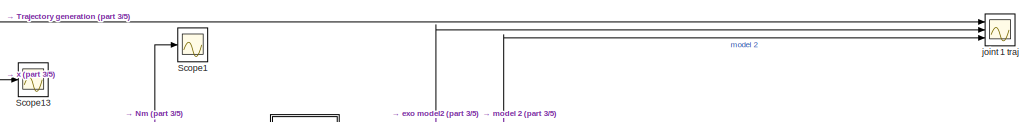
[diagram: root canvas - part 1/5, top center region]
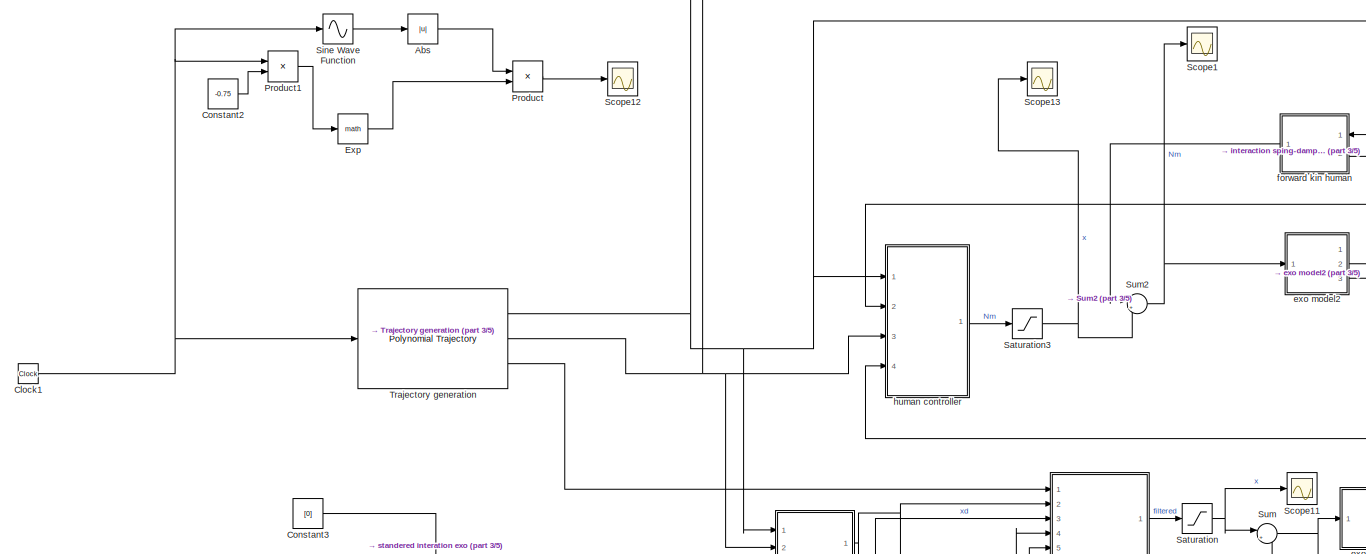
[diagram: root canvas - part 2/5, middle left region]
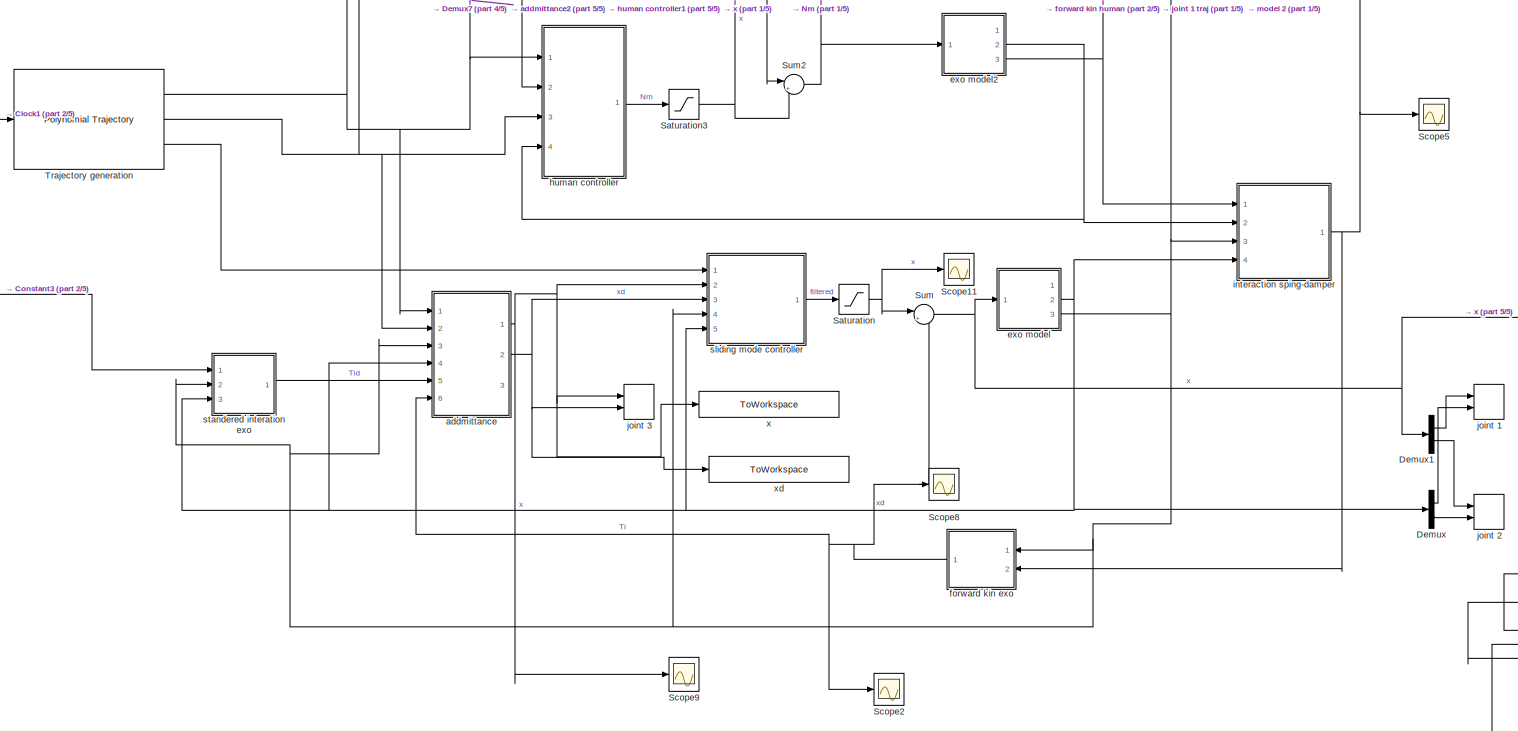
[diagram: root canvas - part 3/5, middle left region]
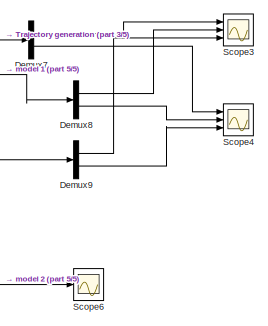
[diagram: root canvas - part 4/5, middle right region]
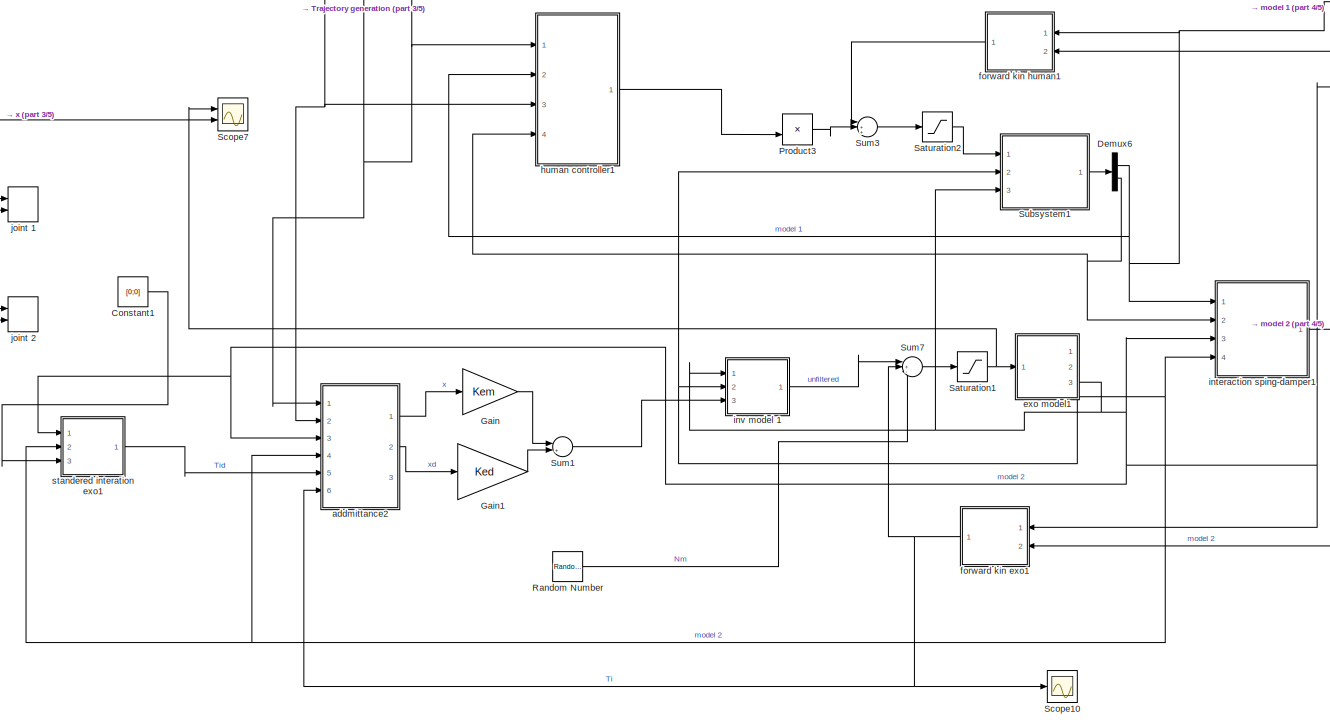
[diagram: root canvas - part 5/5, bottom right region]
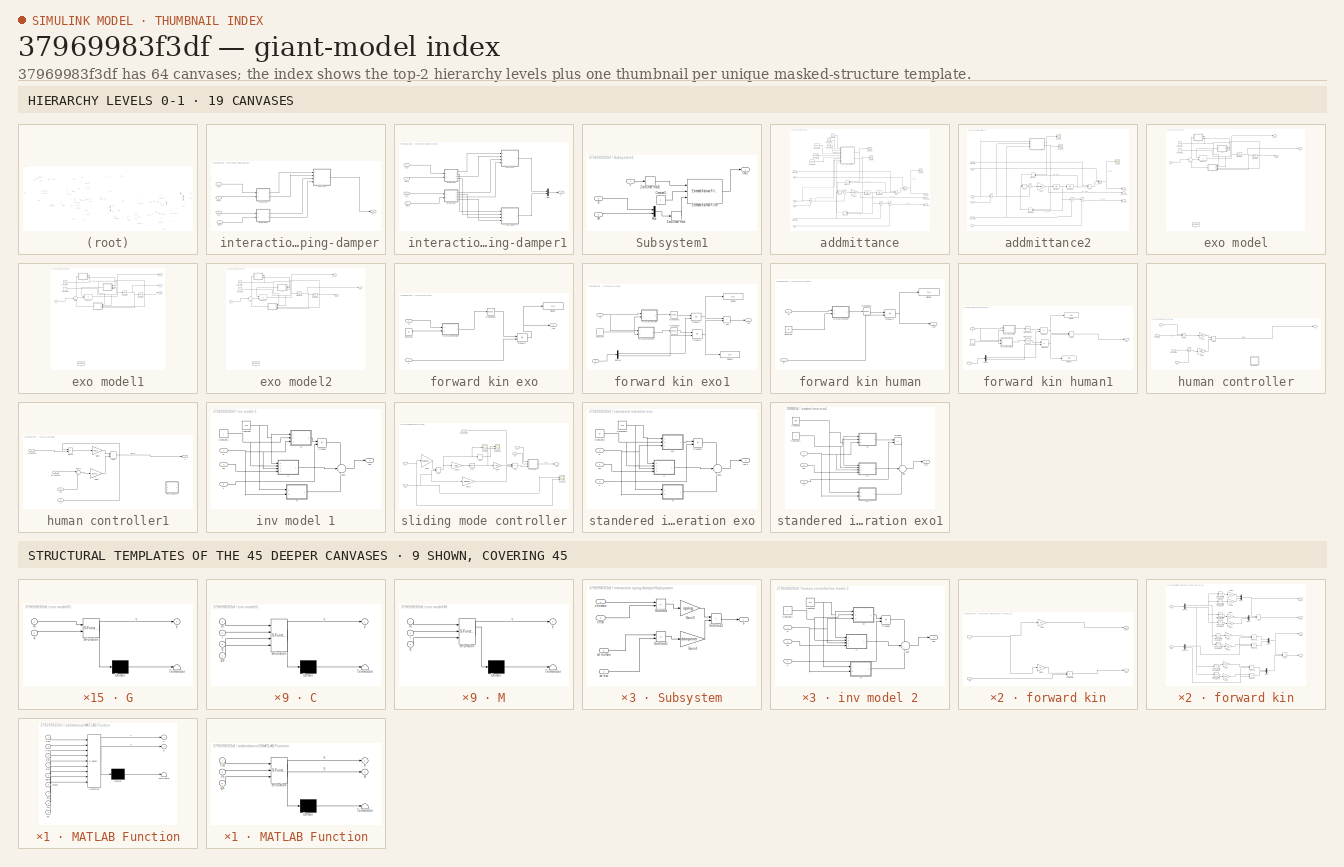
[diagram: thumbnail index - top-2 hierarchy levels (19 canvases) + 9 structural-template representatives of the remaining 45 canvases]
MODEL slx_37969983f3df
KIND model
CONFIG AbsTol = auto
CONFIG EnableMultiTasking = off
CONFIG FixedStep = .01
CONFIG MaxStep = auto
CONFIG MinStep = auto
CONFIG RelTol = 1e-3
CONFIG SampleTimeConstraint = Unconstrained
CONFIG SolverName = FixedStepAuto
CONFIG StartTime = 0.0
CONFIG StopTime = 20
WORKSPACE source: mxarray member
WORKSPACE exo_pos_cost_10: param.Continuous (value not decoded)
BLOCK [SubSystem]  interaction sping-damper
  Ports = [4, 1]
  RequestExecContextInheritance = off
BLOCK [Outport]  interaction sping-damper/F
BLOCK [SubSystem]  interaction sping-damper/Subsystem
  Ports = [4, 1]
  RequestExecContextInheritance = off
BLOCK [Outport]  interaction sping-damper/Subsystem/F
BLOCK [Gain]  interaction sping-damper/Subsystem/Gain3
  Gain = spring
  Multiplication = Matrix(K*u)
BLOCK [Gain]  interaction sping-damper/Subsystem/Gain4
  Gain = dampener
  Multiplication = Matrix(K*u)
BLOCK [Sum]  interaction sping-damper/Subsystem/Subtract
  IconShape = rectangular
  Inputs = -+
  Ports = [2, 1]
BLOCK [Sum]  interaction sping-damper/Subsystem/Subtract1
  IconShape = rectangular
  Inputs = -+
  Ports = [2, 1]
BLOCK [Sum]  interaction sping-damper/Subsystem/Subtract2
  IconShape = rectangular
  Ports = [2, 1]
BLOCK [Inport]  interaction sping-damper/Subsystem/x exo
  Port = 3
BLOCK [Inport]  interaction sping-damper/Subsystem/x human
BLOCK [Inport]  interaction sping-damper/Subsystem/xd exo
  Port = 4
BLOCK [Inport]  interaction sping-damper/Subsystem/xd human 
  Port = 2
BLOCK [SubSystem]  interaction sping-damper/forward kin
  Ports = [2, 2]
  RequestExecContextInheritance = off
BLOCK [Gain]  interaction sping-damper/forward kin/Gain4
  Gain = lh
BLOCK [Gain]  interaction sping-damper/forward kin/Gain5
  Gain = lh
BLOCK [Product]  interaction sping-damper/forward kin/Product2
  Ports = [2, 1]
BLOCK [Outport]  interaction sping-damper/forward kin/pos1
BLOCK [Inport]  interaction sping-damper/forward kin/q 
BLOCK [Inport]  interaction sping-damper/forward kin/qd
  Port = 2
BLOCK [Outport]  interaction sping-damper/forward kin/vel1
  Port = 2
BLOCK [SubSystem]  interaction sping-damper/forward kin1
  Ports = [2, 2]
  RequestExecContextInheritance = off
BLOCK [Gain]  interaction sping-damper/forward kin1/Gain4
  Gain = le
BLOCK [Gain]  interaction sping-damper/forward kin1/Gain5
  Gain = le
BLOCK [Product]  interaction sping-damper/forward kin1/Product2
  Ports = [2, 1]
BLOCK [Outport]  interaction sping-damper/forward kin1/pos1
BLOCK [Inport]  interaction sping-damper/forward kin1/q 
BLOCK [Inport]  interaction sping-damper/forward kin1/qd
  Port = 2
BLOCK [Outport]  interaction sping-damper/forward kin1/vel1
  Port = 2
BLOCK [Inport]  interaction sping-damper/q_e
  Port = 3
BLOCK [Inport]  interaction sping-damper/q_h
BLOCK [Inport]  interaction sping-damper/qd_e 
  Port = 4
BLOCK [Inport]  interaction sping-damper/qd_h
  Port = 2
BLOCK [SubSystem]  interaction sping-damper1
  Commented = on
  Ports = [4, 1]
  RequestExecContextInheritance = off
BLOCK [Outport]  interaction sping-damper1/F
BLOCK [Mux]  interaction sping-damper1/Mux
  DisplayOption = bar
  Inputs = 2
  Ports = [2, 1]
BLOCK [SubSystem]  interaction sping-damper1/Subsystem
  Ports = [4, 1]
  RequestExecContextInheritance = off
BLOCK [Outport]  interaction sping-damper1/Subsystem/F
BLOCK [Gain]  interaction sping-damper1/Subsystem/Gain3
  Gain = spring
  Multiplication = Matrix(K*u)
BLOCK [Gain]  interaction sping-damper1/Subsystem/Gain4
  Gain = dampener
  Multiplication = Matrix(K*u)
BLOCK [Sum]  interaction sping-damper1/Subsystem/Subtract
  IconShape = rectangular
  Inputs = -+
  Ports = [2, 1]
BLOCK [Sum]  interaction sping-damper1/Subsystem/Subtract1
  IconShape = rectangular
  Inputs = -+
  Ports = [2, 1]
BLOCK [Sum]  interaction sping-damper1/Subsystem/Subtract2
  IconShape = rectangular
  Ports = [2, 1]
BLOCK [Inport]  interaction sping-damper1/Subsystem/x exo
  Port = 3
BLOCK [Inport]  interaction sping-damper1/Subsystem/x human
BLOCK [Inport]  interaction sping-damper1/Subsystem/xd exo
  Port = 4
BLOCK [Inport]  interaction sping-damper1/Subsystem/xd human 
  Port = 2
BLOCK [SubSystem]  interaction sping-damper1/Subsystem1
  Ports = [4, 1]
  RequestExecContextInheritance = off
BLOCK [Outport]  interaction sping-damper1/Subsystem1/F
BLOCK [Gain]  interaction sping-damper1/Subsystem1/Gain3
  Gain = spring
  Multiplication = Matrix(K*u)
BLOCK [Gain]  interaction sping-damper1/Subsystem1/Gain4
  Gain = dampener
  Multiplication = Matrix(K*u)
BLOCK [Sum]  interaction sping-damper1/Subsystem1/Subtract
  IconShape = rectangular
  Inputs = -+
  Ports = [2, 1]
BLOCK [Sum]  interaction sping-damper1/Subsystem1/Subtract1
  IconShape = rectangular
  Inputs = -+
  Ports = [2, 1]
BLOCK [Sum]  interaction sping-damper1/Subsystem1/Subtract2
  IconShape = rectangular
  Ports = [2, 1]
BLOCK [Inport]  interaction sping-damper1/Subsystem1/x exo
  Port = 3
BLOCK [Inport]  interaction sping-damper1/Subsystem1/x human
BLOCK [Inport]  interaction sping-damper1/Subsystem1/xd exo
  Port = 4
BLOCK [Inport]  interaction sping-damper1/Subsystem1/xd human 
  Port = 2
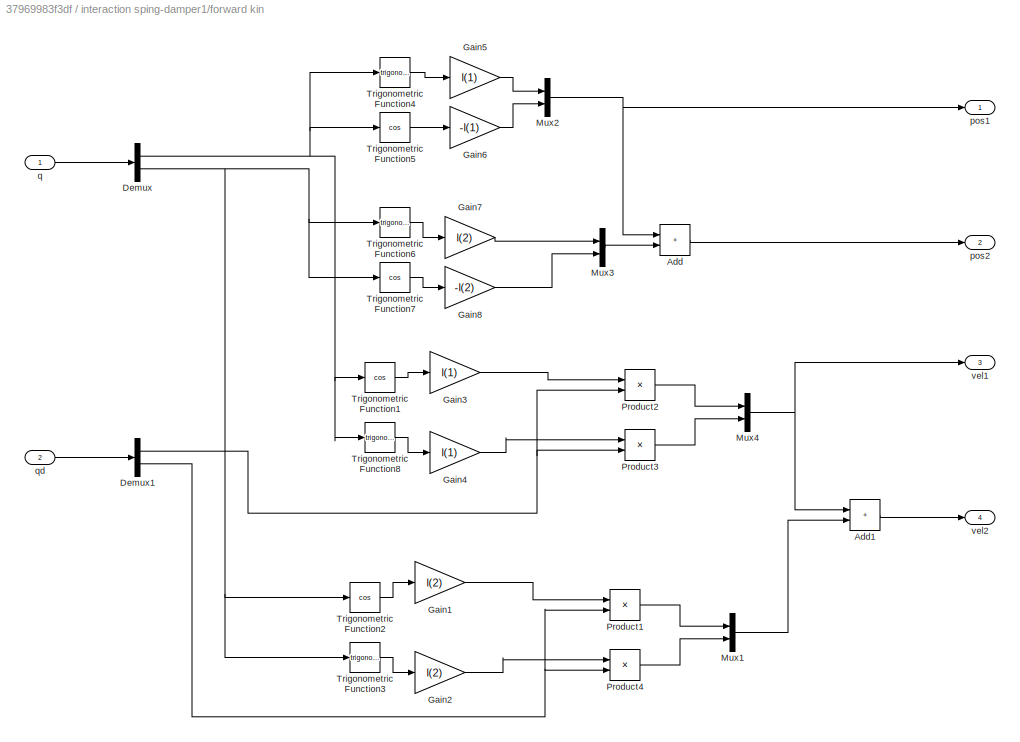
BLOCK [SubSystem]  interaction sping-damper1/forward kin
  Ports = [2, 4]
  RequestExecContextInheritance = off
BLOCK [Sum]  interaction sping-damper1/forward kin/Add
  IconShape = rectangular
  Ports = [2, 1]
BLOCK [Sum]  interaction sping-damper1/forward kin/Add1
  IconShape = rectangular
  Ports = [2, 1]
BLOCK [Demux]  interaction sping-damper1/forward kin/Demux
  Outputs = 2
  Ports = [1, 2]
BLOCK [Demux]  interaction sping-damper1/forward kin/Demux1
  Outputs = 2
  Ports = [1, 2]
BLOCK [Gain]  interaction sping-damper1/forward kin/Gain1
  Gain = l(2)
BLOCK [Gain]  interaction sping-damper1/forward kin/Gain2
  Gain = l(2)
BLOCK [Gain]  interaction sping-damper1/forward kin/Gain3
  Gain = l(1)
BLOCK [Gain]  interaction sping-damper1/forward kin/Gain4
  Gain = l(1)
BLOCK [Gain]  interaction sping-damper1/forward kin/Gain5
  Gain = l(1)
BLOCK [Gain]  interaction sping-damper1/forward kin/Gain6
  Gain = -l(1)
BLOCK [Gain]  interaction sping-damper1/forward kin/Gain7
  Gain = l(2)
BLOCK [Gain]  interaction sping-damper1/forward kin/Gain8
  Gain = -l(2)
BLOCK [Mux]  interaction sping-damper1/forward kin/Mux1
  DisplayOption = bar
  Inputs = 2
  Ports = [2, 1]
BLOCK [Mux]  interaction sping-damper1/forward kin/Mux2
  DisplayOption = bar
  Inputs = 2
  Ports = [2, 1]
BLOCK [Mux]  interaction sping-damper1/forward kin/Mux3
  DisplayOption = bar
  Inputs = 2
  Ports = [2, 1]
BLOCK [Mux]  interaction sping-damper1/forward kin/Mux4
  DisplayOption = bar
  Inputs = 2
  Ports = [2, 1]
BLOCK [Product]  interaction sping-damper1/forward kin/Product1
  Ports = [2, 1]
BLOCK [Product]  interaction sping-damper1/forward kin/Product2
  Ports = [2, 1]
BLOCK [Product]  interaction sping-damper1/forward kin/Product3
  Ports = [2, 1]
BLOCK [Product]  interaction sping-damper1/forward kin/Product4
  Ports = [2, 1]
BLOCK [Trigonometry]  interaction sping-damper1/forward kin/Trigonometric Function1
  Operator = cos
  Ports = [1, 1]
BLOCK [Trigonometry]  interaction sping-damper1/forward kin/Trigonometric Function2
  Operator = cos
  Ports = [1, 1]
BLOCK [Trigonometry]  interaction sping-damper1/forward kin/Trigonometric Function3
  Ports = [1, 1]
BLOCK [Trigonometry]  interaction sping-damper1/forward kin/Trigonometric Function4
  Ports = [1, 1]
BLOCK [Trigonometry]  interaction sping-damper1/forward kin/Trigonometric Function5
  Operator = cos
  Ports = [1, 1]
BLOCK [Trigonometry]  interaction sping-damper1/forward kin/Trigonometric Function6
  Ports = [1, 1]
BLOCK [Trigonometry]  interaction sping-damper1/forward kin/Trigonometric Function7
  Operator = cos
  Ports = [1, 1]
BLOCK [Trigonometry]  interaction sping-damper1/forward kin/Trigonometric Function8
  Ports = [1, 1]
BLOCK [Outport]  interaction sping-damper1/forward kin/pos1
BLOCK [Outport]  interaction sping-damper1/forward kin/pos2
  Port = 2
BLOCK [Inport]  interaction sping-damper1/forward kin/q 
BLOCK [Inport]  interaction sping-damper1/forward kin/qd
  Port = 2
BLOCK [Outport]  interaction sping-damper1/forward kin/vel1
  Port = 3
BLOCK [Outport]  interaction sping-damper1/forward kin/vel2
  Port = 4
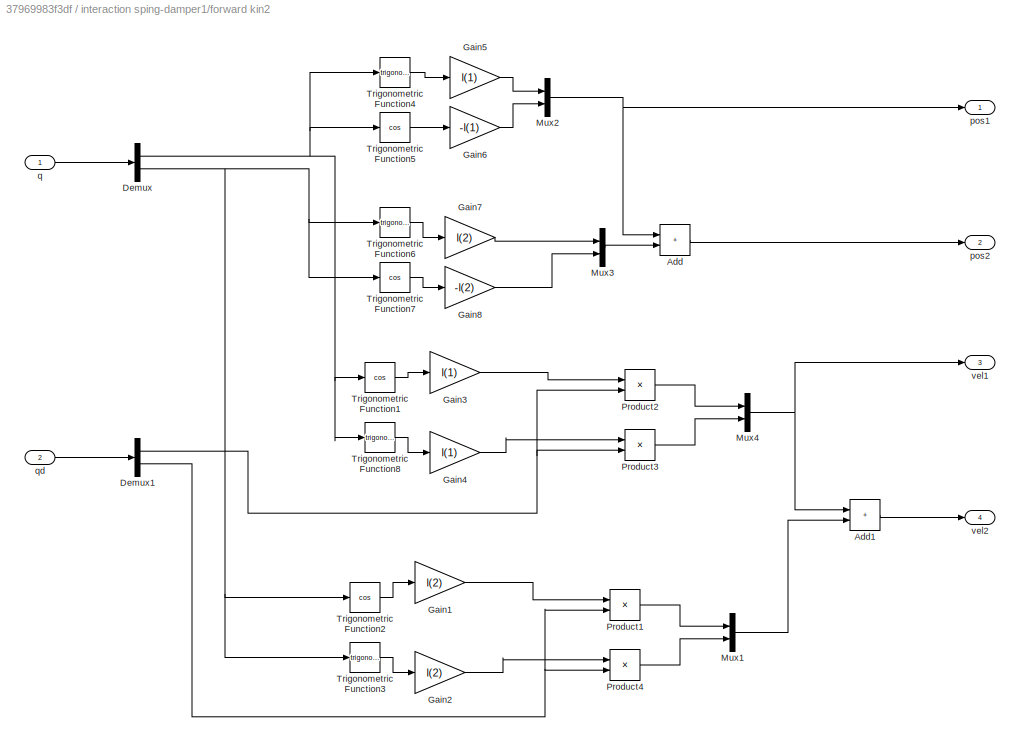
BLOCK [SubSystem]  interaction sping-damper1/forward kin2
  Ports = [2, 4]
  RequestExecContextInheritance = off
BLOCK [Sum]  interaction sping-damper1/forward kin2/Add
  IconShape = rectangular
  Ports = [2, 1]
BLOCK [Sum]  interaction sping-damper1/forward kin2/Add1
  IconShape = rectangular
  Ports = [2, 1]
BLOCK [Demux]  interaction sping-damper1/forward kin2/Demux
  Outputs = 2
  Ports = [1, 2]
BLOCK [Demux]  interaction sping-damper1/forward kin2/Demux1
  Outputs = 2
  Ports = [1, 2]
BLOCK [Gain]  interaction sping-damper1/forward kin2/Gain1
  Gain = l(2)
BLOCK [Gain]  interaction sping-damper1/forward kin2/Gain2
  Gain = l(2)
BLOCK [Gain]  interaction sping-damper1/forward kin2/Gain3
  Gain = l(1)
BLOCK [Gain]  interaction sping-damper1/forward kin2/Gain4
  Gain = l(1)
BLOCK [Gain]  interaction sping-damper1/forward kin2/Gain5
  Gain = l(1)
BLOCK [Gain]  interaction sping-damper1/forward kin2/Gain6
  Gain = -l(1)
BLOCK [Gain]  interaction sping-damper1/forward kin2/Gain7
  Gain = l(2)
BLOCK [Gain]  interaction sping-damper1/forward kin2/Gain8
  Gain = -l(2)
BLOCK [Mux]  interaction sping-damper1/forward kin2/Mux1
  DisplayOption = bar
  Inputs = 2
  Ports = [2, 1]
BLOCK [Mux]  interaction sping-damper1/forward kin2/Mux2
  DisplayOption = bar
  Inputs = 2
  Ports = [2, 1]
BLOCK [Mux]  interaction sping-damper1/forward kin2/Mux3
  DisplayOption = bar
  Inputs = 2
  Ports = [2, 1]
BLOCK [Mux]  interaction sping-damper1/forward kin2/Mux4
  DisplayOption = bar
  Inputs = 2
  Ports = [2, 1]
BLOCK [Product]  interaction sping-damper1/forward kin2/Product1
  Ports = [2, 1]
BLOCK [Product]  interaction sping-damper1/forward kin2/Product2
  Ports = [2, 1]
BLOCK [Product]  interaction sping-damper1/forward kin2/Product3
  Ports = [2, 1]
BLOCK [Product]  interaction sping-damper1/forward kin2/Product4
  Ports = [2, 1]
BLOCK [Trigonometry]  interaction sping-damper1/forward kin2/Trigonometric Function1
  Operator = cos
  Ports = [1, 1]
BLOCK [Trigonometry]  interaction sping-damper1/forward kin2/Trigonometric Function2
  Operator = cos
  Ports = [1, 1]
BLOCK [Trigonometry]  interaction sping-damper1/forward kin2/Trigonometric Function3
  Ports = [1, 1]
BLOCK [Trigonometry]  interaction sping-damper1/forward kin2/Trigonometric Function4
  Ports = [1, 1]
BLOCK [Trigonometry]  interaction sping-damper1/forward kin2/Trigonometric Function5
  Operator = cos
  Ports = [1, 1]
BLOCK [Trigonometry]  interaction sping-damper1/forward kin2/Trigonometric Function6
  Ports = [1, 1]
BLOCK [Trigonometry]  interaction sping-damper1/forward kin2/Trigonometric Function7
  Operator = cos
  Ports = [1, 1]
BLOCK [Trigonometry]  interaction sping-damper1/forward kin2/Trigonometric Function8
  Ports = [1, 1]
BLOCK [Outport]  interaction sping-damper1/forward kin2/pos1
BLOCK [Outport]  interaction sping-damper1/forward kin2/pos2
  Port = 2
BLOCK [Inport]  interaction sping-damper1/forward kin2/q 
BLOCK [Inport]  interaction sping-damper1/forward kin2/qd
  Port = 2
BLOCK [Outport]  interaction sping-damper1/forward kin2/vel1
  Port = 3
BLOCK [Outport]  interaction sping-damper1/forward kin2/vel2
  Port = 4
BLOCK [Inport]  interaction sping-damper1/q_e
  Port = 3
BLOCK [Inport]  interaction sping-damper1/q_h
BLOCK [Inport]  interaction sping-damper1/qd_e 
  Port = 4
BLOCK [Inport]  interaction sping-damper1/qd_h
  Port = 2
BLOCK [Abs] Abs
  SaturateOnIntegerOverflow = off
BLOCK [Clock] Clock1
BLOCK [Constant] Constant1
  Commented = on
  Value = [0;0]
BLOCK [Constant] Constant2
  Value = -0.75
BLOCK [Constant] Constant3
  Value = [0]
BLOCK [Demux] Demux
  Commented = on
  Outputs = 2
  Ports = [1, 2]
BLOCK [Demux] Demux1
  Commented = on
  Outputs = 2
  Ports = [1, 2]
BLOCK [Demux] Demux6
  Commented = on
  Outputs = 2
  Ports = [1, 2]
BLOCK [Demux] Demux7
  Commented = on
  Outputs = 2
  Ports = [1, 2]
BLOCK [Demux] Demux8
  Commented = on
  Outputs = 2
  Ports = [1, 2]
BLOCK [Demux] Demux9
  Commented = on
  Outputs = 2
  Ports = [1, 2]
BLOCK [Math] Exp
  Ports = [1, 1]
BLOCK [Gain] Gain
  Commented = on
  Gain = Kem
  Multiplication = Matrix(K*u)
BLOCK [Gain] Gain1
  Commented = on
  Gain = Ked
  Multiplication = Matrix(K*u)
BLOCK [Product] Product
  Ports = [2, 1]
BLOCK [Product] Product1
  Ports = [2, 1]
BLOCK [Product] Product3
  Commented = on
  Ports = [2, 1]
BLOCK [RandomNumber] Random Number
  Commented = on
  SampleTime = 0.1
  Variance = 15
BLOCK [Saturate] Saturation
  LowerLimit = -exo_sat
  UpperLimit = exo_sat
BLOCK [Saturate] Saturation1
  Commented = on
  LowerLimit = -exo_sat
  UpperLimit = exo_sat
BLOCK [Saturate] Saturation2
  Commented = on
  LowerLimit = -human_sat
  UpperLimit = human_sat
BLOCK [Saturate] Saturation3
  LowerLimit = -human_sat
  UpperLimit = human_sat
BLOCK [Scope] Scope1
  Floating = off
  NameLocation = top
  NumInputPorts = 1
  Ports = [1]
  ScopeSpecificationString = Simulink.scopes.TimeScopeBlockCfg('CurrentConfiguration', extmgr.ConfigurationSet(extmgr.Configuration('Core','General UI',true),extmgr.Configuration('Core','Source UI',true),extmgr.Configuration('Sources','WiredSimulink',true,'DataLoggingVariableName','ScopeData1'),extmgr.Configuration('Visuals','Time Domain',true,'SerializedDisplays',{struct('MinYLimReal','-198.34964','MaxYLimReal','205.53011','...<+1596ch>
BLOCK [Scope] Scope10
  Commented = on
  Floating = off
  NameLocation = top
  NumInputPorts = 1
  Ports = [1]
  ScopeSpecificationString = Simulink.scopes.TimeScopeBlockCfg('CurrentConfiguration', extmgr.ConfigurationSet(extmgr.Configuration('Core','General UI',true),extmgr.Configuration('Core','Source UI',true),extmgr.Configuration('Sources','WiredSimulink',true,'DataLoggingVariableName','ScopeData4'),extmgr.Configuration('Visuals','Time Domain',true,'SerializedDisplays',{struct('MinYLimReal','-72587.95024','MaxYLimReal','8398.34859...<+1511ch>
BLOCK [Scope] Scope11
  Floating = off
  NameLocation = top
  NumInputPorts = 1
  Ports = [1]
  ScopeSpecificationString = Simulink.scopes.TimeScopeBlockCfg('CurrentConfiguration', extmgr.ConfigurationSet(extmgr.Configuration('Core','General UI',true),extmgr.Configuration('Core','Source UI',true),extmgr.Configuration('Sources','WiredSimulink',true,'DataLoggingVariableName','ScopeData2'),extmgr.Configuration('Visuals','Time Domain',true,'SerializedDisplays',{struct('MinYLimReal','-1.00000','MaxYLimReal','1.00000','YLab...<+1422ch>
BLOCK [Scope] Scope12
  Floating = off
  NameLocation = top
  NumInputPorts = 1
  Ports = [1]
  ScopeSpecificationString = Simulink.scopes.TimeScopeBlockCfg('CurrentConfiguration', extmgr.ConfigurationSet(extmgr.Configuration('Core','General UI',true),extmgr.Configuration('Core','Source UI',true),extmgr.Configuration('Sources','WiredSimulink',true,'DataLoggingVariableName','ScopeData1'),extmgr.Configuration('Visuals','Time Domain',true,'SerializedDisplays',{struct('MinYLimReal','-0.06427','MaxYLimReal','0.57847','YLab...<+1578ch>
BLOCK [Scope] Scope13
  Floating = off
  NameLocation = top
  NumInputPorts = 1
  Ports = [1]
  ScopeSpecificationString = Simulink.scopes.TimeScopeBlockCfg('CurrentConfiguration', extmgr.ConfigurationSet(extmgr.Configuration('Core','General UI',true),extmgr.Configuration('Core','Source UI',true),extmgr.Configuration('Sources','WiredSimulink',true,'DataLoggingVariableName','ScopeData3'),extmgr.Configuration('Visuals','Time Domain',true,'SerializedDisplays',{struct('MinYLimReal','-187.5','MaxYLimReal','187.5','YLabelRe...<+1562ch>
BLOCK [Scope] Scope2
  Floating = off
  NameLocation = top
  NumInputPorts = 1
  Ports = [1]
  ScopeSpecificationString = Simulink.scopes.TimeScopeBlockCfg('CurrentConfiguration', extmgr.ConfigurationSet(extmgr.Configuration('Core','General UI',true),extmgr.Configuration('Core','Source UI',true),extmgr.Configuration('Sources','WiredSimulink',true,'DataLoggingVariableName','ScopeData6'),extmgr.Configuration('Visuals','Time Domain',true,'SerializedDisplays',{struct('MinYLimReal','-37.70806','MaxYLimReal','65.4442','YLa...<+1486ch>
BLOCK [Scope] Scope3
  Commented = on
  Floating = off
  NumInputPorts = 3
  Ports = [3]
  ScopeSpecificationString = Simulink.scopes.TimeScopeBlockCfg('CurrentConfiguration', extmgr.ConfigurationSet(extmgr.Configuration('Core','General UI',true),extmgr.Configuration('Core','Source UI',true),extmgr.Configuration('Sources','WiredSimulink',true,'DataLoggingVariableName','ScopeData7'),extmgr.Configuration('Visuals','Time Domain',true,'SerializedDisplays',{struct('MinYLimReal','-4.75438','MaxYLimReal','2.70302','YLab...<+1462ch>
BLOCK [Scope] Scope4
  Commented = on
  Floating = off
  NumInputPorts = 3
  Ports = [3]
  ScopeSpecificationString = Simulink.scopes.TimeScopeBlockCfg('CurrentConfiguration', extmgr.ConfigurationSet(extmgr.Configuration('Core','General UI',true),extmgr.Configuration('Core','Source UI',true),extmgr.Configuration('Sources','WiredSimulink',true,'DataLoggingVariableName','ScopeData8'),extmgr.Configuration('Visuals','Time Domain',true,'SerializedDisplays',{struct('MinYLimReal','-3.57969','MaxYLimReal','0.4682','YLabe...<+1487ch>
BLOCK [Scope] Scope5
  Floating = off
  NameLocation = top
  NumInputPorts = 1
  Ports = [1]
  ScopeSpecificationString = Simulink.scopes.TimeScopeBlockCfg('CurrentConfiguration', extmgr.ConfigurationSet(extmgr.Configuration('Core','General UI',true),extmgr.Configuration('Core','Source UI',true),extmgr.Configuration('Sources','WiredSimulink',true,'DataLoggingVariableName','ScopeData9'),extmgr.Configuration('Visuals','Time Domain',true,'SerializedDisplays',{struct('MinYLimReal','-503.85144','MaxYLimReal','340.27653','...<+1458ch>
BLOCK [Scope] Scope6
  Commented = on
  Floating = off
  NameLocation = top
  NumInputPorts = 1
  Ports = [1]
  ScopeSpecificationString = Simulink.scopes.TimeScopeBlockCfg('CurrentConfiguration', extmgr.ConfigurationSet(extmgr.Configuration('Core','General UI',true),extmgr.Configuration('Core','Source UI',true),extmgr.Configuration('Sources','WiredSimulink',true,'DataLoggingVariableName','ScopeData10'),extmgr.Configuration('Visuals','Time Domain',true,'SerializedDisplays',{struct('MinYLimReal','-10.56553','MaxYLimReal','20.32207','Y...<+1423ch>
BLOCK [Scope] Scope7
  Commented = on
  Floating = off
  NumInputPorts = 2
  Ports = [2]
  ScopeSpecificationString = Simulink.scopes.TimeScopeBlockCfg('CurrentConfiguration', extmgr.ConfigurationSet(extmgr.Configuration('Core','General UI',true),extmgr.Configuration('Core','Source UI',true),extmgr.Configuration('Sources','WiredSimulink',true,'DataLoggingVariableName','ScopeData11'),extmgr.Configuration('Visuals','Time Domain',true,'SerializedDisplays',{struct('MinYLimReal','-75.00000','MaxYLimReal','75.00000','Y...<+1611ch>
BLOCK [Scope] Scope8
  Floating = off
  NameLocation = top
  NumInputPorts = 1
  Ports = [1]
  ScopeSpecificationString = Simulink.scopes.TimeScopeBlockCfg('CurrentConfiguration', extmgr.ConfigurationSet(extmgr.Configuration('Core','General UI',true),extmgr.Configuration('Core','Source UI',true),extmgr.Configuration('Sources','WiredSimulink',true,'DataLoggingVariableName','ScopeData1'),extmgr.Configuration('Visuals','Time Domain',true,'SerializedDisplays',{struct('MinYLimReal','-107.27432','MaxYLimReal','161.96569','...<+1435ch>
BLOCK [Scope] Scope9
  Floating = off
  NameLocation = top
  NumInputPorts = 1
  Ports = [1]
  ScopeSpecificationString = Simulink.scopes.TimeScopeBlockCfg('CurrentConfiguration', extmgr.ConfigurationSet(extmgr.Configuration('Core','General UI',true),extmgr.Configuration('Core','Source UI',true),extmgr.Configuration('Sources','WiredSimulink',true,'DataLoggingVariableName','ScopeData1'),extmgr.Configuration('Visuals','Time Domain',true,'SerializedDisplays',{struct('MinYLimReal','-3.53251','MaxYLimReal','0.47662','YLab...<+1484ch>
BLOCK [Sin] Sine Wave Function
  Frequency = 5
  Ports = [1, 1]
  SampleTime = 0
  TimeSource = Use external signal
BLOCK [SubSystem] Subsystem1
  Commented = on
  Ports = [3, 1]
  RequestExecContextInheritance = off
BLOCK [Constant] Subsystem1/Constant5
BLOCK [Reference] Subsystem1/Extended Kalman Filter  REF=sharedTrackingLibrary/Extended Kalman Filter
  Ports = [3, 1]
  SourceBlock = sharedTrackingLibrary/Extended Kalman Filter
  SourceProductBaseCode = AE,PW,CT,DR,TF,ID,LP,NV,AR,RO,RR,UV,VE
  SourceType = Extended Kalman Filter
BLOCK [Mux] Subsystem1/Mux
  DisplayOption = bar
  Inputs = 2
  Ports = [2, 1]
BLOCK [Outport] Subsystem1/Out1
BLOCK [ZeroOrderHold] Subsystem1/Zero-Order Hold
  SampleTime = .01
BLOCK [ZeroOrderHold] Subsystem1/Zero-Order Hold1
  SampleTime = .01
BLOCK [Inport] Subsystem1/q
  Port = 3
BLOCK [Inport] Subsystem1/qd
  Port = 2
BLOCK [Inport] Subsystem1/u
BLOCK [Sum] Sum
  Inputs = |+-
  Ports = [2, 1]
BLOCK [Sum] Sum1
  Commented = on
  Inputs = |++
  Ports = [2, 1]
BLOCK [Sum] Sum2
  Inputs = |++
  Ports = [2, 1]
BLOCK [Sum] Sum3
  Commented = on
  Inputs = |+++
  Ports = [3, 1]
BLOCK [Sum] Sum7
  Commented = on
  Inputs = |+-+
  Ports = [3, 1]
BLOCK [Reference] Trajectory generation  REF=robotcorelib/Polynomial Trajectory
  Ports = [1, 3]
  SourceBlock = robotcorelib/Polynomial Trajectory
  SourceProductBaseCode = NV,RO,RR,UV
  SourceType = robotics.slcore.internal.block.PolyTrajSys
BLOCK [SubSystem] addmittance
  Ports = [6, 3]
  RequestExecContextInheritance = off
BLOCK [Sum] addmittance/Add1
  IconShape = rectangular
  Ports = [2, 1]
BLOCK [Constant] addmittance/Constant
  Value = Kp0
BLOCK [Constant] addmittance/Constant1
  Value = Kn0
BLOCK [Constant] addmittance/Constant2
  Value = Bp0
BLOCK [Constant] addmittance/Constant3
  Value = Bn0
BLOCK [Constant] addmittance/Constant4
  Value = alpha
BLOCK [Constant] addmittance/Constant5
  Value = gamma
BLOCK [Gain] addmittance/Gain5
  Gain = inv(Md)
  Multiplication = Matrix(K*u)
BLOCK [Integrator] addmittance/Integrator
  Ports = [1, 1]
BLOCK [Integrator] addmittance/Integrator1
  InitialCondition = [pi]
  Ports = [1, 1]
BLOCK [SubSystem] addmittance/MATLAB Function
  ErrorFcn = Stateflow.Translate.translate
  PermitHierarchicalResolution = ExplicitOnly
  Ports = [9, 2]
  RequestExecContextInheritance = off
  SFBlockType = MATLAB Function
  TreatAsAtomicUnit = on
BLOCK [Demux] addmittance/MATLAB Function/ Demux 
  Outputs = 1
  Ports = [1, 1]
BLOCK [S-Function] addmittance/MATLAB Function/ SFunction 
  EnableBusSupport = on
  FunctionName = sf_sfun
  PortCounts = [9 3]
  Ports = [9, 3]
  SFcnIsStateOwnerBlock = off
  SFunctionDeploymentMode = off
  Tag = Stateflow S-Function 8
BLOCK [Terminator] addmittance/MATLAB Function/ Terminator 
BLOCK [Outport] addmittance/MATLAB Function/B
  Port = 2
BLOCK [Inport] addmittance/MATLAB Function/Bn0
  Port = 4
BLOCK [Inport] addmittance/MATLAB Function/Bp0
  Port = 3
BLOCK [Outport] addmittance/MATLAB Function/K
BLOCK [Inport] addmittance/MATLAB Function/Kn0
  Port = 2
BLOCK [Inport] addmittance/MATLAB Function/Kp0
BLOCK [Inport] addmittance/MATLAB Function/Th
  Port = 8
BLOCK [Inport] addmittance/MATLAB Function/Tid
  Port = 7
BLOCK [Inport] addmittance/MATLAB Function/alpha
  Port = 6
BLOCK [Inport] addmittance/MATLAB Function/beta
  Port = 5
BLOCK [Inport] addmittance/MATLAB Function/qd
  Port = 9
BLOCK [Product] addmittance/Product
  Multiplication = Matrix(*)
  Ports = [2, 1]
BLOCK [Product] addmittance/Product1
  Multiplication = Matrix(*)
  Ports = [2, 1]
BLOCK [Scope] addmittance/Scope
  Floating = off
  NumInputPorts = 1
  Ports = [1]
  ScopeSpecificationString = Simulink.scopes.TimeScopeBlockCfg('CurrentConfiguration', extmgr.ConfigurationSet(extmgr.Configuration('Core','General UI',true),extmgr.Configuration('Core','Source UI',true),extmgr.Configuration('Sources','WiredSimulink',true,'DataLoggingVariableName','ScopeData2'),extmgr.Configuration('Visuals','Time Domain',true,'SerializedDisplays',{struct('MinYLimReal','-15.90008','MaxYLimReal','1.89295','YLa...<+1406ch>
BLOCK [Scope] addmittance/Scope1
  Floating = off
  NumInputPorts = 1
  Ports = [1]
  ScopeSpecificationString = Simulink.scopes.TimeScopeBlockCfg('CurrentConfiguration', extmgr.ConfigurationSet(extmgr.Configuration('Core','General UI',true),extmgr.Configuration('Core','Source UI',true),extmgr.Configuration('Sources','WiredSimulink',true,'DataLoggingVariableName','ScopeData2'),extmgr.Configuration('Visuals','Time Domain',true,'SerializedDisplays',{struct('MinYLimReal','-64.56093','MaxYLimReal','581.04839','Y...<+1508ch>
BLOCK [Scope] addmittance/Scope2
  Floating = off
  NumInputPorts = 1
  Ports = [1]
  ScopeSpecificationString = Simulink.scopes.TimeScopeBlockCfg('CurrentConfiguration', extmgr.ConfigurationSet(extmgr.Configuration('Core','General UI',true),extmgr.Configuration('Core','Source UI',true),extmgr.Configuration('Sources','WiredSimulink',true,'DataLoggingVariableName','ScopeData3'),extmgr.Configuration('Visuals','Time Domain',true,'SerializedDisplays',{struct('MinYLimReal','-64.56093','MaxYLimReal','581.04839','Y...<+1480ch>
BLOCK [Sum] addmittance/Sum
  Inputs = |+-
  Ports = [2, 1]
BLOCK [Sum] addmittance/Sum1
  IconShape = rectangular
  Inputs = |+-
  Ports = [2, 1]
BLOCK [Sum] addmittance/Sum2
  Inputs = |-+
  Ports = [2, 1]
BLOCK [Sum] addmittance/Sum6
  Inputs = |-+
  Ports = [2, 1]
BLOCK [Sum] addmittance/Sum7
  IconShape = rectangular
  Inputs = |++
  Ports = [2, 1]
BLOCK [Sum] addmittance/Sum8
  Inputs = |++
  Ports = [2, 1]
BLOCK [Inport] addmittance/Ti
  Port = 6
BLOCK [Inport] addmittance/Tid
  Port = 5
BLOCK [Inport] addmittance/q
  Port = 3
BLOCK [Inport] addmittance/q desird
BLOCK [Outport] addmittance/q_add
BLOCK [Inport] addmittance/qd
  Port = 4
BLOCK [Inport] addmittance/qd desird
  Port = 2
BLOCK [Outport] addmittance/qd_add
  Port = 2
BLOCK [Outport] addmittance/qdd_add
  Port = 3
BLOCK [SubSystem] addmittance2
  Commented = on
  Ports = [6, 3]
  RequestExecContextInheritance = off
BLOCK [Sum] addmittance2/Add1
  IconShape = rectangular
  Ports = [2, 1]
BLOCK [Gain] addmittance2/Gain5
  Gain = inv(Md)
  Multiplication = Matrix(K*u)
BLOCK [Integrator] addmittance2/Integrator
  Ports = [1, 1]
BLOCK [Integrator] addmittance2/Integrator1
  InitialCondition = [pi;0.5*pi]
  Ports = [1, 1]
BLOCK [SubSystem] addmittance2/MATLAB Function
  ErrorFcn = Stateflow.Translate.translate
  PermitHierarchicalResolution = ExplicitOnly
  Ports = [3, 2]
  RequestExecContextInheritance = off
  SFBlockType = MATLAB Function
  TreatAsAtomicUnit = on
BLOCK [Demux] addmittance2/MATLAB Function/ Demux 
  Outputs = 1
  Ports = [1, 1]
BLOCK [S-Function] addmittance2/MATLAB Function/ SFunction 
  EnableBusSupport = on
  FunctionName = sf_sfun
  PortCounts = [3 3]
  Ports = [3, 3]
  SFcnIsStateOwnerBlock = off
  SFunctionDeploymentMode = off
  Tag = Stateflow S-Function 9
BLOCK [Terminator] addmittance2/MATLAB Function/ Terminator 
BLOCK [Outport] addmittance2/MATLAB Function/B
  Port = 2
BLOCK [Outport] addmittance2/MATLAB Function/K
BLOCK [Inport] addmittance2/MATLAB Function/Th
  Port = 2
BLOCK [Inport] addmittance2/MATLAB Function/Tid
BLOCK [Inport] addmittance2/MATLAB Function/qd
  Port = 3
BLOCK [Product] addmittance2/Product
  Multiplication = Matrix(*)
  Ports = [2, 1]
BLOCK [Product] addmittance2/Product1
  Multiplication = Matrix(*)
  Ports = [2, 1]
BLOCK [Scope] addmittance2/Scope
  Floating = off
  NumInputPorts = 1
  Ports = [1]
  ScopeSpecificationString = Simulink.scopes.TimeScopeBlockCfg('CurrentConfiguration', extmgr.ConfigurationSet(extmgr.Configuration('Core','General UI',true),extmgr.Configuration('Core','Source UI',true),extmgr.Configuration('Sources','WiredSimulink',true,'DataLoggingVariableName','ScopeData2'),extmgr.Configuration('Visuals','Time Domain',true,'SerializedDisplays',{struct('MinYLimReal','-15.90008','MaxYLimReal','1.89295','YLa...<+1406ch>
BLOCK [Scope] addmittance2/Scope1
  Floating = off
  NumInputPorts = 1
  Ports = [1]
  ScopeSpecificationString = Simulink.scopes.TimeScopeBlockCfg('CurrentConfiguration', extmgr.ConfigurationSet(extmgr.Configuration('Core','General UI',true),extmgr.Configuration('Core','Source UI',true),extmgr.Configuration('Sources','WiredSimulink',true,'DataLoggingVariableName','ScopeData2'),extmgr.Configuration('Visuals','Time Domain',true,'SerializedDisplays',{struct('MinYLimReal','-10.95336','MaxYLimReal','98.5802','YLa...<+1475ch>
BLOCK [Scope] addmittance2/Scope2
  Floating = off
  NumInputPorts = 1
  Ports = [1]
  ScopeSpecificationString = Simulink.scopes.TimeScopeBlockCfg('CurrentConfiguration', extmgr.ConfigurationSet(extmgr.Configuration('Core','General UI',true),extmgr.Configuration('Core','Source UI',true),extmgr.Configuration('Sources','WiredSimulink',true,'DataLoggingVariableName','ScopeData3'),extmgr.Configuration('Visuals','Time Domain',true,'SerializedDisplays',{struct('MinYLimReal','-13.41102','MaxYLimReal','120.6992','YL...<+1476ch>
BLOCK [Sum] addmittance2/Sum
  Inputs = |+-
  Ports = [2, 1]
BLOCK [Sum] addmittance2/Sum1
  IconShape = rectangular
  Inputs = |-+
  Ports = [2, 1]
BLOCK [Sum] addmittance2/Sum2
  Inputs = |+-
  Ports = [2, 1]
BLOCK [Sum] addmittance2/Sum6
  Inputs = |-+
  Ports = [2, 1]
BLOCK [Sum] addmittance2/Sum7
  IconShape = rectangular
  Inputs = |++
  Ports = [2, 1]
BLOCK [Sum] addmittance2/Sum8
  Inputs = |++
  Ports = [2, 1]
BLOCK [Inport] addmittance2/Ti
  Port = 6
BLOCK [Inport] addmittance2/Tid
  Port = 5
BLOCK [Inport] addmittance2/q
  Port = 3
BLOCK [Inport] addmittance2/q desird
BLOCK [Outport] addmittance2/q_add
BLOCK [Inport] addmittance2/qd
  Port = 4
BLOCK [Inport] addmittance2/qd desird
  Port = 2
BLOCK [Outport] addmittance2/qd_add
  Port = 2
BLOCK [Outport] addmittance2/qdd_add
  Port = 3
BLOCK [SubSystem] exo model
  Ports = [1, 3]
  RequestExecContextInheritance = off
BLOCK [Sum] exo model/Add2
  Inputs = -+-
  Ports = [3, 1]
BLOCK [SubSystem] exo model/C
  ErrorFcn = Stateflow.Translate.translate
  PermitHierarchicalResolution = ExplicitOnly
  Ports = [4, 1]
  RequestExecContextInheritance = off
  SFBlockType = MATLAB Function
  TreatAsAtomicUnit = on
BLOCK [Demux] exo model/C/ Demux 
  Outputs = 1
  Ports = [1, 1]
BLOCK [S-Function] exo model/C/ SFunction 
  EnableBusSupport = on
  FunctionName = sf_sfun
  PortCounts = [4 2]
  Ports = [4, 2]
  SFcnIsStateOwnerBlock = off
  SFunctionDeploymentMode = off
  Tag = Stateflow S-Function 14
BLOCK [Terminator] exo model/C/ Terminator 
BLOCK [Inport] exo model/C/l
  Port = 2
BLOCK [Inport] exo model/C/m
BLOCK [Inport] exo model/C/q
  Port = 3
BLOCK [Inport] exo model/C/qd
  Port = 4
BLOCK [Outport] exo model/C/y
BLOCK [Fcn] exo model/C1
  Commented = on
  Expr = [me2*l2*u(4)*u(4)*sin(u(1)-u(2)); -me2*l1*u(3)*u(3)*sin(u(1)-u(2))]
BLOCK [Constant] exo model/Constant
  Value = me
BLOCK [Constant] exo model/Constant1
  Value = le
BLOCK [SubSystem] exo model/G
  ErrorFcn = Stateflow.Translate.translate
  PermitHierarchicalResolution = ExplicitOnly
  Ports = [2, 1]
  RequestExecContextInheritance = off
  SFBlockType = MATLAB Function
  TreatAsAtomicUnit = on
BLOCK [Demux] exo model/G/ Demux 
  Outputs = 1
  Ports = [1, 1]
BLOCK [S-Function] exo model/G/ SFunction 
  EnableBusSupport = on
  FunctionName = sf_sfun
  PortCounts = [2 2]
  Ports = [2, 2]
  SFcnIsStateOwnerBlock = off
  SFunctionDeploymentMode = off
  Tag = Stateflow S-Function 15
BLOCK [Terminator] exo model/G/ Terminator 
BLOCK [Inport] exo model/G/m
BLOCK [Inport] exo model/G/q
  Port = 2
BLOCK [Outport] exo model/G/y
BLOCK [Integrator] exo model/Integrator1
  InitialCondition = [0]
  Ports = [1, 1]
BLOCK [Integrator] exo model/Integrator4
  InitialCondition = [0.01]
  Ports = [1, 1]
BLOCK [SubSystem] exo model/M
  ErrorFcn = Stateflow.Translate.translate
  PermitHierarchicalResolution = ExplicitOnly
  Ports = [3, 1]
  RequestExecContextInheritance = off
  SFBlockType = MATLAB Function
  TreatAsAtomicUnit = on
BLOCK [Demux] exo model/M/ Demux 
  Outputs = 1
  Ports = [1, 1]
BLOCK [S-Function] exo model/M/ SFunction 
  EnableBusSupport = on
  FunctionName = sf_sfun
  PortCounts = [3 2]
  Ports = [3, 2]
  SFcnIsStateOwnerBlock = off
  SFunctionDeploymentMode = off
  Tag = Stateflow S-Function 16
BLOCK [Terminator] exo model/M/ Terminator 
BLOCK [Inport] exo model/M/l
  Port = 2
BLOCK [Inport] exo model/M/m
BLOCK [Inport] exo model/M/q
  Port = 3
BLOCK [Outport] exo model/M/y
BLOCK [Product] exo model/Product1
  Multiplication = Matrix(*)
  Ports = [2, 1]
BLOCK [Outport] exo model/accel
BLOCK [Outport] exo model/pos
  Port = 3
BLOCK [Inport] exo model/u
BLOCK [Outport] exo model/vel
  Port = 2
BLOCK [SubSystem] exo model1
  Commented = on
  Ports = [1, 3]
  RequestExecContextInheritance = off
BLOCK [Sum] exo model1/Add2
  Inputs = -+-
  Ports = [3, 1]
BLOCK [SubSystem] exo model1/C
  ErrorFcn = Stateflow.Translate.translate
  PermitHierarchicalResolution = ExplicitOnly
  Ports = [4, 1]
  RequestExecContextInheritance = off
  SFBlockType = MATLAB Function
  TreatAsAtomicUnit = on
BLOCK [Demux] exo model1/C/ Demux 
  Outputs = 1
  Ports = [1, 1]
BLOCK [S-Function] exo model1/C/ SFunction 
  EnableBusSupport = on
  FunctionName = sf_sfun
  PortCounts = [4 2]
  Ports = [4, 2]
  SFcnIsStateOwnerBlock = off
  SFunctionDeploymentMode = off
  Tag = Stateflow S-Function 39
BLOCK [Terminator] exo model1/C/ Terminator 
BLOCK [Inport] exo model1/C/l
  Port = 2
BLOCK [Inport] exo model1/C/m
BLOCK [Inport] exo model1/C/q
  Port = 3
BLOCK [Inport] exo model1/C/qd
  Port = 4
BLOCK [Outport] exo model1/C/y
BLOCK [Fcn] exo model1/C1
  Commented = on
  Expr = [me2*l2*u(4)*u(4)*sin(u(1)-u(2)); -me2*l1*u(3)*u(3)*sin(u(1)-u(2))]
BLOCK [Constant] exo model1/Constant
  Value = me
BLOCK [Constant] exo model1/Constant1
  Value = l
BLOCK [SubSystem] exo model1/G
  ErrorFcn = Stateflow.Translate.translate
  PermitHierarchicalResolution = ExplicitOnly
  Ports = [2, 1]
  RequestExecContextInheritance = off
  SFBlockType = MATLAB Function
  TreatAsAtomicUnit = on
BLOCK [Demux] exo model1/G/ Demux 
  Outputs = 1
  Ports = [1, 1]
BLOCK [S-Function] exo model1/G/ SFunction 
  EnableBusSupport = on
  FunctionName = sf_sfun
  PortCounts = [2 2]
  Ports = [2, 2]
  SFcnIsStateOwnerBlock = off
  SFunctionDeploymentMode = off
  Tag = Stateflow S-Function 40
BLOCK [Terminator] exo model1/G/ Terminator 
BLOCK [Inport] exo model1/G/m
BLOCK [Inport] exo model1/G/q
  Port = 2
BLOCK [Outport] exo model1/G/y
BLOCK [Integrator] exo model1/Integrator1
  InitialCondition = [0;0]
  Ports = [1, 1]
BLOCK [Integrator] exo model1/Integrator4
  InitialCondition = [0.01;0.01]
  Ports = [1, 1]
BLOCK [SubSystem] exo model1/M
  ErrorFcn = Stateflow.Translate.translate
  PermitHierarchicalResolution = ExplicitOnly
  Ports = [3, 1]
  RequestExecContextInheritance = off
  SFBlockType = MATLAB Function
  TreatAsAtomicUnit = on
BLOCK [Demux] exo model1/M/ Demux 
  Outputs = 1
  Ports = [1, 1]
BLOCK [S-Function] exo model1/M/ SFunction 
  EnableBusSupport = on
  FunctionName = sf_sfun
  PortCounts = [3 2]
  Ports = [3, 2]
  SFcnIsStateOwnerBlock = off
  SFunctionDeploymentMode = off
  Tag = Stateflow S-Function 41
BLOCK [Terminator] exo model1/M/ Terminator 
BLOCK [Inport] exo model1/M/l
  Port = 2
BLOCK [Inport] exo model1/M/m
BLOCK [Inport] exo model1/M/q
  Port = 3
BLOCK [Outport] exo model1/M/y
BLOCK [Product] exo model1/Product1
  Multiplication = Matrix(*)
  Ports = [2, 1]
BLOCK [Outport] exo model1/accel
BLOCK [Outport] exo model1/pos
  Port = 3
BLOCK [Inport] exo model1/u
BLOCK [Outport] exo model1/vel
  Port = 2
BLOCK [SubSystem] exo model2
  Ports = [1, 3]
  RequestExecContextInheritance = off
BLOCK [Sum] exo model2/Add2
  Inputs = -+-
  Ports = [3, 1]
BLOCK [SubSystem] exo model2/C
  ErrorFcn = Stateflow.Translate.translate
  PermitHierarchicalResolution = ExplicitOnly
  Ports = [4, 1]
  RequestExecContextInheritance = off
  SFBlockType = MATLAB Function
  TreatAsAtomicUnit = on
BLOCK [Demux] exo model2/C/ Demux 
  Outputs = 1
  Ports = [1, 1]
BLOCK [S-Function] exo model2/C/ SFunction 
  EnableBusSupport = on
  FunctionName = sf_sfun
  PortCounts = [4 2]
  Ports = [4, 2]
  SFcnIsStateOwnerBlock = off
  SFunctionDeploymentMode = off
  Tag = Stateflow S-Function 20
BLOCK [Terminator] exo model2/C/ Terminator 
BLOCK [Inport] exo model2/C/l
  Port = 2
BLOCK [Inport] exo model2/C/m
BLOCK [Inport] exo model2/C/q
  Port = 3
BLOCK [Inport] exo model2/C/qd
  Port = 4
BLOCK [Outport] exo model2/C/y
BLOCK [Fcn] exo model2/C1
  Commented = on
  Expr = [me2*l2*u(4)*u(4)*sin(u(1)-u(2)); -me2*l1*u(3)*u(3)*sin(u(1)-u(2))]
BLOCK [Constant] exo model2/Constant
  Value = mh
BLOCK [Constant] exo model2/Constant1
  Value = lh
BLOCK [SubSystem] exo model2/G
  ErrorFcn = Stateflow.Translate.translate
  PermitHierarchicalResolution = ExplicitOnly
  Ports = [2, 1]
  RequestExecContextInheritance = off
  SFBlockType = MATLAB Function
  TreatAsAtomicUnit = on
BLOCK [Demux] exo model2/G/ Demux 
  Outputs = 1
  Ports = [1, 1]
BLOCK [S-Function] exo model2/G/ SFunction 
  EnableBusSupport = on
  FunctionName = sf_sfun
  PortCounts = [2 2]
  Ports = [2, 2]
  SFcnIsStateOwnerBlock = off
  SFunctionDeploymentMode = off
  Tag = Stateflow S-Function 21
BLOCK [Terminator] exo model2/G/ Terminator 
BLOCK [Inport] exo model2/G/m
BLOCK [Inport] exo model2/G/q
  Port = 2
BLOCK [Outport] exo model2/G/y
BLOCK [Integrator] exo model2/Integrator1
  InitialCondition = [0]
  Ports = [1, 1]
BLOCK [Integrator] exo model2/Integrator4
  InitialCondition = [0.01]
  Ports = [1, 1]
BLOCK [SubSystem] exo model2/M
  ErrorFcn = Stateflow.Translate.translate
  PermitHierarchicalResolution = ExplicitOnly
  Ports = [3, 1]
  RequestExecContextInheritance = off
  SFBlockType = MATLAB Function
  TreatAsAtomicUnit = on
BLOCK [Demux] exo model2/M/ Demux 
  Outputs = 1
  Ports = [1, 1]
BLOCK [S-Function] exo model2/M/ SFunction 
  EnableBusSupport = on
  FunctionName = sf_sfun
  PortCounts = [3 2]
  Ports = [3, 2]
  SFcnIsStateOwnerBlock = off
  SFunctionDeploymentMode = off
  Tag = Stateflow S-Function 22
BLOCK [Terminator] exo model2/M/ Terminator 
BLOCK [Inport] exo model2/M/l
  Port = 2
BLOCK [Inport] exo model2/M/m
BLOCK [Inport] exo model2/M/q
  Port = 3
BLOCK [Outport] exo model2/M/y
BLOCK [Product] exo model2/Product1
  Multiplication = Matrix(*)
  Ports = [2, 1]
BLOCK [Outport] exo model2/accel
BLOCK [Outport] exo model2/pos
  Port = 3
BLOCK [Inport] exo model2/u
BLOCK [Outport] exo model2/vel
  Port = 2
BLOCK [SubSystem] forward kin exo
  Ports = [2, 1]
  RequestExecContextInheritance = off
BLOCK [Constant] forward kin exo/Constant
  Value = le
BLOCK [Display] forward kin exo/Display
  Decimation = 1
  Ports = [1]
BLOCK [Inport] forward kin exo/F
  Port = 2
BLOCK [SubSystem] forward kin exo/MATLAB Function
  ErrorFcn = Stateflow.Translate.translate
  PermitHierarchicalResolution = ExplicitOnly
  Ports = [2, 1]
  RequestExecContextInheritance = off
  SFBlockType = MATLAB Function
  TreatAsAtomicUnit = on
BLOCK [Demux] forward kin exo/MATLAB Function/ Demux 
  Outputs = 1
  Ports = [1, 1]
BLOCK [S-Function] forward kin exo/MATLAB Function/ SFunction 
  EnableBusSupport = on
  FunctionName = sf_sfun
  PortCounts = [2 2]
  Ports = [2, 2]
  SFcnIsStateOwnerBlock = off
  SFunctionDeploymentMode = off
  Tag = Stateflow S-Function 7
BLOCK [Terminator] forward kin exo/MATLAB Function/ Terminator 
BLOCK [Inport] forward kin exo/MATLAB Function/l
  Port = 2
BLOCK [Inport] forward kin exo/MATLAB Function/q
BLOCK [Outport] forward kin exo/MATLAB Function/y
BLOCK [Product] forward kin exo/Product1
  Multiplication = Matrix(*)
  Ports = [2, 1]
BLOCK [Math] forward kin exo/Transpose1
  Operator = transpose
  Ports = [1, 1]
BLOCK [Inport] forward kin exo/q
BLOCK [Outport] forward kin exo/tau
BLOCK [SubSystem] forward kin exo1
  Commented = on
  Ports = [2, 1]
  RequestExecContextInheritance = off
BLOCK [Sum] forward kin exo1/Add
  IconShape = rectangular
  Ports = [2, 1]
BLOCK [Constant] forward kin exo1/Constant
  Value = l
BLOCK [Demux] forward kin exo1/Demux
  Outputs = 2
  Ports = [1, 2]
BLOCK [Display] forward kin exo1/Display
  Decimation = 1
  Ports = [1]
BLOCK [Display] forward kin exo1/Display1
  Decimation = 1
  Ports = [1]
BLOCK [Inport] forward kin exo1/F
  Port = 2
BLOCK [SubSystem] forward kin exo1/MATLAB Function
  ErrorFcn = Stateflow.Translate.translate
  PermitHierarchicalResolution = ExplicitOnly
  Ports = [2, 1]
  RequestExecContextInheritance = off
  SFBlockType = MATLAB Function
  TreatAsAtomicUnit = on
BLOCK [Demux] forward kin exo1/MATLAB Function/ Demux 
  Outputs = 1
  Ports = [1, 1]
BLOCK [S-Function] forward kin exo1/MATLAB Function/ SFunction 
  EnableBusSupport = on
  FunctionName = sf_sfun
  PortCounts = [2 2]
  Ports = [2, 2]
  SFcnIsStateOwnerBlock = off
  SFunctionDeploymentMode = off
  Tag = Stateflow S-Function 23
BLOCK [Terminator] forward kin exo1/MATLAB Function/ Terminator 
BLOCK [Inport] forward kin exo1/MATLAB Function/l
  Port = 2
BLOCK [Inport] forward kin exo1/MATLAB Function/q
BLOCK [Outport] forward kin exo1/MATLAB Function/y
BLOCK [SubSystem] forward kin exo1/MATLAB Function1
  ErrorFcn = Stateflow.Translate.translate
  PermitHierarchicalResolution = ExplicitOnly
  Ports = [2, 1]
  RequestExecContextInheritance = off
  SFBlockType = MATLAB Function
  TreatAsAtomicUnit = on
BLOCK [Demux] forward kin exo1/MATLAB Function1/ Demux 
  Outputs = 1
  Ports = [1, 1]
BLOCK [S-Function] forward kin exo1/MATLAB Function1/ SFunction 
  EnableBusSupport = on
  FunctionName = sf_sfun
  PortCounts = [2 2]
  Ports = [2, 2]
  SFcnIsStateOwnerBlock = off
  SFunctionDeploymentMode = off
  Tag = Stateflow S-Function 30
BLOCK [Terminator] forward kin exo1/MATLAB Function1/ Terminator 
BLOCK [Inport] forward kin exo1/MATLAB Function1/l
  Port = 2
BLOCK [Inport] forward kin exo1/MATLAB Function1/q
BLOCK [Outport] forward kin exo1/MATLAB Function1/y
BLOCK [Product] forward kin exo1/Product1
  Multiplication = Matrix(*)
  Ports = [2, 1]
BLOCK [Product] forward kin exo1/Product2
  Multiplication = Matrix(*)
  Ports = [2, 1]
BLOCK [Math] forward kin exo1/Transpose1
  Operator = transpose
  Ports = [1, 1]
BLOCK [Math] forward kin exo1/Transpose2
  Operator = transpose
  Ports = [1, 1]
BLOCK [Inport] forward kin exo1/q
BLOCK [Outport] forward kin exo1/tau
BLOCK [SubSystem] forward kin human
  Ports = [2, 1]
  RequestExecContextInheritance = off
BLOCK [Constant] forward kin human/Constant
  Value = lh
BLOCK [Display] forward kin human/Display
  Decimation = 1
  Ports = [1]
BLOCK [Inport] forward kin human/F
  Port = 2
BLOCK [SubSystem] forward kin human/MATLAB Function
  ErrorFcn = Stateflow.Translate.translate
  PermitHierarchicalResolution = ExplicitOnly
  Ports = [2, 1]
  RequestExecContextInheritance = off
  SFBlockType = MATLAB Function
  TreatAsAtomicUnit = on
BLOCK [Demux] forward kin human/MATLAB Function/ Demux 
  Outputs = 1
  Ports = [1, 1]
BLOCK [S-Function] forward kin human/MATLAB Function/ SFunction 
  EnableBusSupport = on
  FunctionName = sf_sfun
  PortCounts = [2 2]
  Ports = [2, 2]
  SFcnIsStateOwnerBlock = off
  SFunctionDeploymentMode = off
  Tag = Stateflow S-Function 12
BLOCK [Terminator] forward kin human/MATLAB Function/ Terminator 
BLOCK [Inport] forward kin human/MATLAB Function/l
  Port = 2
BLOCK [Inport] forward kin human/MATLAB Function/q
BLOCK [Outport] forward kin human/MATLAB Function/y
BLOCK [Product] forward kin human/Product1
  Multiplication = Matrix(*)
  Ports = [2, 1]
BLOCK [Math] forward kin human/Transpose1
  Operator = transpose
  Ports = [1, 1]
BLOCK [Inport] forward kin human/q
BLOCK [Outport] forward kin human/tau
BLOCK [SubSystem] forward kin human1
  Commented = on
  Ports = [2, 1]
  RequestExecContextInheritance = off
BLOCK [Sum] forward kin human1/Add
  IconShape = rectangular
  Ports = [2, 1]
BLOCK [Constant] forward kin human1/Constant
  Value = l
BLOCK [Demux] forward kin human1/Demux
  Outputs = 2
  Ports = [1, 2]
BLOCK [Display] forward kin human1/Display
  Decimation = 1
  Ports = [1]
BLOCK [Display] forward kin human1/Display1
  Decimation = 1
  Ports = [1]
BLOCK [Inport] forward kin human1/F
  Port = 2
BLOCK [SubSystem] forward kin human1/MATLAB Function
  ErrorFcn = Stateflow.Translate.translate
  PermitHierarchicalResolution = ExplicitOnly
  Ports = [2, 1]
  RequestExecContextInheritance = off
  SFBlockType = MATLAB Function
  TreatAsAtomicUnit = on
BLOCK [Demux] forward kin human1/MATLAB Function/ Demux 
  Outputs = 1
  Ports = [1, 1]
BLOCK [S-Function] forward kin human1/MATLAB Function/ SFunction 
  EnableBusSupport = on
  FunctionName = sf_sfun
  PortCounts = [2 2]
  Ports = [2, 2]
  SFcnIsStateOwnerBlock = off
  SFunctionDeploymentMode = off
  Tag = Stateflow S-Function 31
BLOCK [Terminator] forward kin human1/MATLAB Function/ Terminator 
BLOCK [Inport] forward kin human1/MATLAB Function/l
  Port = 2
BLOCK [Inport] forward kin human1/MATLAB Function/q
BLOCK [Outport] forward kin human1/MATLAB Function/y
BLOCK [SubSystem] forward kin human1/MATLAB Function1
  ErrorFcn = Stateflow.Translate.translate
  PermitHierarchicalResolution = ExplicitOnly
  Ports = [2, 1]
  RequestExecContextInheritance = off
  SFBlockType = MATLAB Function
  TreatAsAtomicUnit = on
BLOCK [Demux] forward kin human1/MATLAB Function1/ Demux 
  Outputs = 1
  Ports = [1, 1]
BLOCK [S-Function] forward kin human1/MATLAB Function1/ SFunction 
  EnableBusSupport = on
  FunctionName = sf_sfun
  PortCounts = [2 2]
  Ports = [2, 2]
  SFcnIsStateOwnerBlock = off
  SFunctionDeploymentMode = off
  Tag = Stateflow S-Function 32
BLOCK [Terminator] forward kin human1/MATLAB Function1/ Terminator 
BLOCK [Inport] forward kin human1/MATLAB Function1/l
  Port = 2
BLOCK [Inport] forward kin human1/MATLAB Function1/q
BLOCK [Outport] forward kin human1/MATLAB Function1/y
BLOCK [Product] forward kin human1/Product1
  Multiplication = Matrix(*)
  Ports = [2, 1]
BLOCK [Product] forward kin human1/Product2
  Multiplication = Matrix(*)
  Ports = [2, 1]
BLOCK [Math] forward kin human1/Transpose1
  Operator = transpose
  Ports = [1, 1]
BLOCK [Math] forward kin human1/Transpose2
  Operator = transpose
  Ports = [1, 1]
BLOCK [Inport] forward kin human1/q
BLOCK [Outport] forward kin human1/tau
BLOCK [SubSystem] human controller
  Ports = [4, 1]
  RequestExecContextInheritance = off
BLOCK [Sum] human controller/Add2
  IconShape = rectangular
  Ports = [2, 1]
BLOCK [Gain] human controller/Gain1
  Gain = Km1
  Multiplication = Matrix(K*u)
BLOCK [Gain] human controller/Gain2
  Gain = Dm1
  Multiplication = Matrix(K*u)
BLOCK [Sum] human controller/Sum1
  Inputs = |+-
  Ports = [2, 1]
BLOCK [Sum] human controller/Sum3
  IconShape = rectangular
  Inputs = |-+
  Ports = [2, 1]
BLOCK [SubSystem] human controller/inv model 2
  Commented = on
  Ports = [3, 1]
  RequestExecContextInheritance = off
BLOCK [Sum] human controller/inv model 2/Add2
  Inputs = +++
  Ports = [3, 1]
BLOCK [SubSystem] human controller/inv model 2/C
  ErrorFcn = Stateflow.Translate.translate
  PermitHierarchicalResolution = ExplicitOnly
  Ports = [4, 1]
  RequestExecContextInheritance = off
  SFBlockType = MATLAB Function
  TreatAsAtomicUnit = on
BLOCK [Demux] human controller/inv model 2/C/ Demux 
  Outputs = 1
  Ports = [1, 1]
BLOCK [S-Function] human controller/inv model 2/C/ SFunction 
  EnableBusSupport = on
  FunctionName = sf_sfun
  PortCounts = [4 2]
  Ports = [4, 2]
  SFcnIsStateOwnerBlock = off
  SFunctionDeploymentMode = off
  Tag = Stateflow S-Function 1
BLOCK [Terminator] human controller/inv model 2/C/ Terminator 
BLOCK [Inport] human controller/inv model 2/C/l
  Port = 2
BLOCK [Inport] human controller/inv model 2/C/m
BLOCK [Inport] human controller/inv model 2/C/q
  Port = 3
BLOCK [Inport] human controller/inv model 2/C/qd
  Port = 4
BLOCK [Outport] human controller/inv model 2/C/y
BLOCK [Constant] human controller/inv model 2/Constant
  Value = mh
BLOCK [Constant] human controller/inv model 2/Constant1
  Value = l
BLOCK [SubSystem] human controller/inv model 2/G
  ErrorFcn = Stateflow.Translate.translate
  PermitHierarchicalResolution = ExplicitOnly
  Ports = [2, 1]
  RequestExecContextInheritance = off
  SFBlockType = MATLAB Function
  TreatAsAtomicUnit = on
BLOCK [Demux] human controller/inv model 2/G/ Demux 
  Outputs = 1
  Ports = [1, 1]
BLOCK [S-Function] human controller/inv model 2/G/ SFunction 
  EnableBusSupport = on
  FunctionName = sf_sfun
  PortCounts = [2 2]
  Ports = [2, 2]
  SFcnIsStateOwnerBlock = off
  SFunctionDeploymentMode = off
  Tag = Stateflow S-Function 2
BLOCK [Terminator] human controller/inv model 2/G/ Terminator 
BLOCK [Inport] human controller/inv model 2/G/m
BLOCK [Inport] human controller/inv model 2/G/q
  Port = 2
BLOCK [Outport] human controller/inv model 2/G/y
BLOCK [SubSystem] human controller/inv model 2/M
  ErrorFcn = Stateflow.Translate.translate
  PermitHierarchicalResolution = ExplicitOnly
  Ports = [3, 1]
  RequestExecContextInheritance = off
  SFBlockType = MATLAB Function
  TreatAsAtomicUnit = on
BLOCK [Demux] human controller/inv model 2/M/ Demux 
  Outputs = 1
  Ports = [1, 1]
BLOCK [S-Function] human controller/inv model 2/M/ SFunction 
  EnableBusSupport = on
  FunctionName = sf_sfun
  PortCounts = [3 2]
  Ports = [3, 2]
  SFcnIsStateOwnerBlock = off
  SFunctionDeploymentMode = off
  Tag = Stateflow S-Function 3
BLOCK [Terminator] human controller/inv model 2/M/ Terminator 
BLOCK [Inport] human controller/inv model 2/M/l
  Port = 2
BLOCK [Inport] human controller/inv model 2/M/m
BLOCK [Inport] human controller/inv model 2/M/q
  Port = 3
BLOCK [Outport] human controller/inv model 2/M/y
BLOCK [Product] human controller/inv model 2/Product
  Multiplication = Matrix(*)
  Ports = [2, 1]
BLOCK [Inport] human controller/inv model 2/q
BLOCK [Inport] human controller/inv model 2/qd
  Port = 2
BLOCK [Outport] human controller/inv model 2/tau 
BLOCK [Inport] human controller/inv model 2/u 
  Port = 3
BLOCK [Inport] human controller/q
  Port = 2
BLOCK [Inport] human controller/q desired
BLOCK [Inport] human controller/qd
  Port = 4
BLOCK [Inport] human controller/qd desired
  Port = 3
BLOCK [Outport] human controller/u
BLOCK [SubSystem] human controller1
  Commented = on
  Ports = [4, 1]
  RequestExecContextInheritance = off
BLOCK [Sum] human controller1/Add2
  IconShape = rectangular
  Ports = [2, 1]
BLOCK [Gain] human controller1/Gain1
  Gain = Km1
  Multiplication = Matrix(K*u)
BLOCK [Gain] human controller1/Gain2
  Gain = Dm1
  Multiplication = Matrix(K*u)
BLOCK [Sum] human controller1/Sum1
  Inputs = |+-
  Ports = [2, 1]
BLOCK [Sum] human controller1/Sum3
  IconShape = rectangular
  Inputs = |-+
  Ports = [2, 1]
BLOCK [SubSystem] human controller1/inv model 2
  Commented = on
  Ports = [3, 1]
  RequestExecContextInheritance = off
BLOCK [Sum] human controller1/inv model 2/Add2
  Inputs = +++
  Ports = [3, 1]
BLOCK [SubSystem] human controller1/inv model 2/C
  ErrorFcn = Stateflow.Translate.translate
  PermitHierarchicalResolution = ExplicitOnly
  Ports = [4, 1]
  RequestExecContextInheritance = off
  SFBlockType = MATLAB Function
  TreatAsAtomicUnit = on
BLOCK [Demux] human controller1/inv model 2/C/ Demux 
  Outputs = 1
  Ports = [1, 1]
BLOCK [S-Function] human controller1/inv model 2/C/ SFunction 
  EnableBusSupport = on
  FunctionName = sf_sfun
  PortCounts = [4 2]
  Ports = [4, 2]
  SFcnIsStateOwnerBlock = off
  SFunctionDeploymentMode = off
  Tag = Stateflow S-Function 10
BLOCK [Terminator] human controller1/inv model 2/C/ Terminator 
BLOCK [Inport] human controller1/inv model 2/C/l
  Port = 2
BLOCK [Inport] human controller1/inv model 2/C/m
BLOCK [Inport] human controller1/inv model 2/C/q
  Port = 3
BLOCK [Inport] human controller1/inv model 2/C/qd
  Port = 4
BLOCK [Outport] human controller1/inv model 2/C/y
BLOCK [Constant] human controller1/inv model 2/Constant
  Value = mh
BLOCK [Constant] human controller1/inv model 2/Constant1
  Value = l
BLOCK [SubSystem] human controller1/inv model 2/G
  ErrorFcn = Stateflow.Translate.translate
  PermitHierarchicalResolution = ExplicitOnly
  Ports = [2, 1]
  RequestExecContextInheritance = off
  SFBlockType = MATLAB Function
  TreatAsAtomicUnit = on
BLOCK [Demux] human controller1/inv model 2/G/ Demux 
  Outputs = 1
  Ports = [1, 1]
BLOCK [S-Function] human controller1/inv model 2/G/ SFunction 
  EnableBusSupport = on
  FunctionName = sf_sfun
  PortCounts = [2 2]
  Ports = [2, 2]
  SFcnIsStateOwnerBlock = off
  SFunctionDeploymentMode = off
  Tag = Stateflow S-Function 27
BLOCK [Terminator] human controller1/inv model 2/G/ Terminator 
BLOCK [Inport] human controller1/inv model 2/G/m
BLOCK [Inport] human controller1/inv model 2/G/q
  Port = 2
BLOCK [Outport] human controller1/inv model 2/G/y
BLOCK [SubSystem] human controller1/inv model 2/M
  ErrorFcn = Stateflow.Translate.translate
  PermitHierarchicalResolution = ExplicitOnly
  Ports = [3, 1]
  RequestExecContextInheritance = off
  SFBlockType = MATLAB Function
  TreatAsAtomicUnit = on
BLOCK [Demux] human controller1/inv model 2/M/ Demux 
  Outputs = 1
  Ports = [1, 1]
BLOCK [S-Function] human controller1/inv model 2/M/ SFunction 
  EnableBusSupport = on
  FunctionName = sf_sfun
  PortCounts = [3 2]
  Ports = [3, 2]
  SFcnIsStateOwnerBlock = off
  SFunctionDeploymentMode = off
  Tag = Stateflow S-Function 28
BLOCK [Terminator] human controller1/inv model 2/M/ Terminator 
BLOCK [Inport] human controller1/inv model 2/M/l
  Port = 2
BLOCK [Inport] human controller1/inv model 2/M/m
BLOCK [Inport] human controller1/inv model 2/M/q
  Port = 3
BLOCK [Outport] human controller1/inv model 2/M/y
BLOCK [Product] human controller1/inv model 2/Product
  Multiplication = Matrix(*)
  Ports = [2, 1]
BLOCK [Inport] human controller1/inv model 2/q
BLOCK [Inport] human controller1/inv model 2/qd
  Port = 2
BLOCK [Outport] human controller1/inv model 2/tau 
BLOCK [Inport] human controller1/inv model 2/u 
  Port = 3
BLOCK [Inport] human controller1/q
  Port = 2
BLOCK [Inport] human controller1/q desired
BLOCK [Inport] human controller1/qd
  Port = 4
BLOCK [Inport] human controller1/qd desired
  Port = 3
BLOCK [Outport] human controller1/u
BLOCK [SubSystem] inv model 1
  Commented = on
  Ports = [3, 1]
  RequestExecContextInheritance = off
BLOCK [Sum] inv model 1/Add2
  Inputs = +++
  Ports = [3, 1]
BLOCK [SubSystem] inv model 1/C
  ErrorFcn = Stateflow.Translate.translate
  PermitHierarchicalResolution = ExplicitOnly
  Ports = [4, 1]
  RequestExecContextInheritance = off
  SFBlockType = MATLAB Function
  TreatAsAtomicUnit = on
BLOCK [Demux] inv model 1/C/ Demux 
  Outputs = 1
  Ports = [1, 1]
BLOCK [S-Function] inv model 1/C/ SFunction 
  EnableBusSupport = on
  FunctionName = sf_sfun
  PortCounts = [4 2]
  Ports = [4, 2]
  SFcnIsStateOwnerBlock = off
  SFunctionDeploymentMode = off
  Tag = Stateflow S-Function 36
BLOCK [Terminator] inv model 1/C/ Terminator 
BLOCK [Inport] inv model 1/C/l
  Port = 2
BLOCK [Inport] inv model 1/C/m
BLOCK [Inport] inv model 1/C/q
  Port = 3
BLOCK [Inport] inv model 1/C/qd
  Port = 4
BLOCK [Outport] inv model 1/C/y
BLOCK [Constant] inv model 1/Constant
  Value = me
BLOCK [Constant] inv model 1/Constant1
  Value = l
BLOCK [SubSystem] inv model 1/G
  ErrorFcn = Stateflow.Translate.translate
  PermitHierarchicalResolution = ExplicitOnly
  Ports = [2, 1]
  RequestExecContextInheritance = off
  SFBlockType = MATLAB Function
  TreatAsAtomicUnit = on
BLOCK [Demux] inv model 1/G/ Demux 
  Outputs = 1
  Ports = [1, 1]
BLOCK [S-Function] inv model 1/G/ SFunction 
  EnableBusSupport = on
  FunctionName = sf_sfun
  PortCounts = [2 2]
  Ports = [2, 2]
  SFcnIsStateOwnerBlock = off
  SFunctionDeploymentMode = off
  Tag = Stateflow S-Function 37
BLOCK [Terminator] inv model 1/G/ Terminator 
BLOCK [Inport] inv model 1/G/m
BLOCK [Inport] inv model 1/G/q
  Port = 2
BLOCK [Outport] inv model 1/G/y
BLOCK [SubSystem] inv model 1/M
  ErrorFcn = Stateflow.Translate.translate
  PermitHierarchicalResolution = ExplicitOnly
  Ports = [3, 1]
  RequestExecContextInheritance = off
  SFBlockType = MATLAB Function
  TreatAsAtomicUnit = on
BLOCK [Demux] inv model 1/M/ Demux 
  Outputs = 1
  Ports = [1, 1]
BLOCK [S-Function] inv model 1/M/ SFunction 
  EnableBusSupport = on
  FunctionName = sf_sfun
  PortCounts = [3 2]
  Ports = [3, 2]
  SFcnIsStateOwnerBlock = off
  SFunctionDeploymentMode = off
  Tag = Stateflow S-Function 38
BLOCK [Terminator] inv model 1/M/ Terminator 
BLOCK [Inport] inv model 1/M/l
  Port = 2
BLOCK [Inport] inv model 1/M/m
BLOCK [Inport] inv model 1/M/q
  Port = 3
BLOCK [Outport] inv model 1/M/y
BLOCK [Product] inv model 1/Product
  Multiplication = Matrix(*)
  Ports = [2, 1]
BLOCK [Inport] inv model 1/q
BLOCK [Inport] inv model 1/qd
  Port = 2
BLOCK [Outport] inv model 1/tau 
BLOCK [Inport] inv model 1/u 
  Port = 3
BLOCK [Record] joint 1
  Commented = on
  CompatibilityTag = XY
  FileSettingsInternal = {"entries":[{"content":{"excelSettings":{"content":{},"type":"Streamout.ExcelSettings"}},"type":"Streamout.FileSettingStorage","uuid":"6bc2b785-4acb-4113-8108-5c9192710856"}],"packageUris":["http://schema.mathworks.com/mf0/streamout_blocks/R2020a"],"version":"1.0"}
  Layout = [1 1]
  Ports = [2]
  SignalsInternal = {"entries":[{"content":{"signals":[{"content":{"blockPath":["mod_double_pend_anujay/joint 1"],"channel":[],"dimensions":[1],"domain":"mod_double_pend_anujay/joint 1","lineColor":"#a2142f","plots":[1],"port":1,"sid":[],"signalID":9,"signalName":"XY Graph:1"},"type":"RecordBlkView.Signal","uuid":"36cefb21-0ddd-4be6-b60c-d27b113ee07c"},{"content":{"blockPath":["mod_double_pend_anujay/joint 1"],"chann...<+412ch>
  VisualizationBindings = {"xyplotplugin":{"info":[{"series":[{"bindingParametersList":[{"parameter":"X-Axis","signalID":9,"signalName":"XY Graph:1"},{"parameter":"Y-Axis","signalID":12,"signalName":"XY Graph:2"}],"seriesID":40713}],"subplotID":1}]}}
  st = -1
BLOCK [Scope] joint 1 traj
  Floating = off
  NumInputPorts = 3
  Ports = [3]
  ScopeSpecificationString = Simulink.scopes.TimeScopeBlockCfg('CurrentConfiguration', extmgr.ConfigurationSet(extmgr.Configuration('Core','General UI',true),extmgr.Configuration('Core','Source UI',true),extmgr.Configuration('Sources','WiredSimulink',true,'DataLoggingVariableName','ScopeData4'),extmgr.Configuration('Visuals','Time Domain',true,'PlotType','Line','SerializedDisplays',{struct('MinYLimReal','-3.56709','MaxYLimRea...<+1593ch>
BLOCK [Record] joint 2
  Commented = on
  CompatibilityTag = XY
  FileSettingsInternal = {"entries":[{"content":{"excelSettings":{"content":{},"type":"Streamout.ExcelSettings"}},"type":"Streamout.FileSettingStorage","uuid":"06463dad-7f9e-4f0d-a9b6-33f4f094dfce"}],"packageUris":["http://schema.mathworks.com/mf0/streamout_blocks/R2020a"],"version":"1.0"}
  Layout = [1 1]
  Ports = [2]
  SignalsInternal = {"entries":[{"content":{"signals":[{"content":{"blockPath":["mod_double_pend_anujay/joint 2"],"channel":[],"dimensions":[1],"domain":"mod_double_pend_anujay/joint 2","lineColor":"#a2142f","plots":[1],"port":1,"sid":[],"signalID":17,"signalName":"XY Graph:1"},"type":"RecordBlkView.Signal","uuid":"3c9d53ed-faa7-4f30-8aff-2f60cce81293"},{"content":{"blockPath":["mod_double_pend_anujay/joint 2"],"chan...<+413ch>
  VisualizationBindings = {"xyplotplugin":{"info":[{"series":[{"bindingParametersList":[{"parameter":"X-Axis","signalID":17,"signalName":"XY Graph:1"},{"parameter":"Y-Axis","signalID":20,"signalName":"XY Graph:2"}],"seriesID":57138}],"subplotID":1}]}}
  st = -1
BLOCK [Record] joint 3
  CompatibilityTag = XY
  FileSettingsInternal = {"entries":[{"content":{"excelSettings":{"content":{},"type":"Streamout.ExcelSettings"}},"type":"Streamout.FileSettingStorage","uuid":"067652e4-936e-48e6-b800-cd075c348dbd"}],"packageUris":["http://schema.mathworks.com/mf0/streamout_blocks/R2020a"],"version":"1.0"}
  Layout = [1 1]
  Ports = [2]
  SignalsInternal = {"entries":[{"content":{"signals":[{"content":{"blockPath":["mod_double_pend_anujay/joint 3"],"channel":[],"dimensions":[1],"domain":"mod_double_pend_anujay/joint 3","lineColor":"#edb120","plots":[],"port":1,"sid":[""],"signalID":163,"signalName":"x"},"type":"RecordBlkView.Signal","uuid":"8786b3c8-1626-4e0a-bd73-33adc0b7f9cf"},{"content":{"blockPath":["mod_double_pend_anujay/joint 3"],"channel":[]...<+400ch>
  VisualizationBindings = {"xyplotplugin":{"info":[{"series":[],"subplotID":1}]}}
  st = -1
BLOCK [SubSystem] sliding mode controller
  Ports = [5, 1]
  RequestExecContextInheritance = off
BLOCK [Sum] sliding mode controller/Add
  IconShape = rectangular
  Ports = [2, 1]
BLOCK [Sum] sliding mode controller/Add1
  IconShape = rectangular
  Inputs = +--
  Ports = [3, 1]
BLOCK [Gain] sliding mode controller/Gain12
  Gain = lambda2
  Multiplication = Matrix(K*u)
BLOCK [Gain] sliding mode controller/Gain18
  Gain = beta
BLOCK [Gain] sliding mode controller/Gain3
  Gain = lambda2
  Multiplication = Matrix(K*u)
BLOCK [Gain] sliding mode controller/Gain4
  Gain = rho2
  Multiplication = Matrix(K*u)
BLOCK [Outport] sliding mode controller/SMC
BLOCK [Scope] sliding mode controller/Scope19
  Floating = off
  NameLocation = top
  NumInputPorts = 2
  Ports = [2]
  ScopeSpecificationString = Simulink.scopes.TimeScopeBlockCfg('CurrentConfiguration', extmgr.ConfigurationSet(extmgr.Configuration('Core','General UI',true),extmgr.Configuration('Core','Source UI',true),extmgr.Configuration('Sources','WiredSimulink',true,'DataLoggingVariableName','ScopeData1'),extmgr.Configuration('Visuals','Time Domain',true,'SerializedDisplays',{struct('MinYLimReal','-1.25','MaxYLimReal','1.25','YLabelReal...<+1417ch>
BLOCK [Scope] sliding mode controller/Scope22
  Floating = off
  NameLocation = top
  NumInputPorts = 2
  Ports = [2]
  ScopeSpecificationString = Simulink.scopes.TimeScopeBlockCfg('CurrentConfiguration', extmgr.ConfigurationSet(extmgr.Configuration('Core','General UI',true),extmgr.Configuration('Core','Source UI',true),extmgr.Configuration('Sources','WiredSimulink',true,'DataLoggingVariableName','ScopeData2'),extmgr.Configuration('Visuals','Time Domain',true,'SerializedDisplays',{struct('MinYLimReal','-3.90929','MaxYLimReal','3.7677','YLabe...<+1474ch>
BLOCK [Scope] sliding mode controller/Scope6
  Floating = off
  NameLocation = top
  NumInputPorts = 1
  Ports = [1]
  ScopeSpecificationString = Simulink.scopes.TimeScopeBlockCfg('CurrentConfiguration', extmgr.ConfigurationSet(extmgr.Configuration('Core','General UI',true),extmgr.Configuration('Core','Source UI',true),extmgr.Configuration('Sources','WiredSimulink',true,'DataLoggingVariableName','ScopeData6'),extmgr.Configuration('Visuals','Time Domain',true,'SerializedDisplays',{struct('MinYLimReal','-3.54056','MaxYLimReal','0.44913','YLab...<+1405ch>
BLOCK [Signum] sliding mode controller/Sign
BLOCK [Trigonometry] sliding mode controller/Tanh
  Operator = tanh
  Ports = [1, 1]
BLOCK [SubSystem] sliding mode controller/inv model 1
  Ports = [3, 1]
  RequestExecContextInheritance = off
BLOCK [Sum] sliding mode controller/inv model 1/Add2
  Inputs = +++
  Ports = [3, 1]
BLOCK [SubSystem] sliding mode controller/inv model 1/C
  ErrorFcn = Stateflow.Translate.translate
  PermitHierarchicalResolution = ExplicitOnly
  Ports = [4, 1]
  RequestExecContextInheritance = off
  SFBlockType = MATLAB Function
  TreatAsAtomicUnit = on
BLOCK [Demux] sliding mode controller/inv model 1/C/ Demux 
  Outputs = 1
  Ports = [1, 1]
BLOCK [S-Function] sliding mode controller/inv model 1/C/ SFunction 
  EnableBusSupport = on
  FunctionName = sf_sfun
  PortCounts = [4 2]
  Ports = [4, 2]
  SFcnIsStateOwnerBlock = off
  SFunctionDeploymentMode = off
  Tag = Stateflow S-Function 4
BLOCK [Terminator] sliding mode controller/inv model 1/C/ Terminator 
BLOCK [Inport] sliding mode controller/inv model 1/C/l
  Port = 2
BLOCK [Inport] sliding mode controller/inv model 1/C/m
BLOCK [Inport] sliding mode controller/inv model 1/C/q
  Port = 3
BLOCK [Inport] sliding mode controller/inv model 1/C/qd
  Port = 4
BLOCK [Outport] sliding mode controller/inv model 1/C/y
BLOCK [Constant] sliding mode controller/inv model 1/Constant
  Value = me
BLOCK [Constant] sliding mode controller/inv model 1/Constant1
  Value = le
BLOCK [SubSystem] sliding mode controller/inv model 1/G
  ErrorFcn = Stateflow.Translate.translate
  PermitHierarchicalResolution = ExplicitOnly
  Ports = [2, 1]
  RequestExecContextInheritance = off
  SFBlockType = MATLAB Function
  TreatAsAtomicUnit = on
BLOCK [Demux] sliding mode controller/inv model 1/G/ Demux 
  Outputs = 1
  Ports = [1, 1]
BLOCK [S-Function] sliding mode controller/inv model 1/G/ SFunction 
  EnableBusSupport = on
  FunctionName = sf_sfun
  PortCounts = [2 2]
  Ports = [2, 2]
  SFcnIsStateOwnerBlock = off
  SFunctionDeploymentMode = off
  Tag = Stateflow S-Function 5
BLOCK [Terminator] sliding mode controller/inv model 1/G/ Terminator 
BLOCK [Inport] sliding mode controller/inv model 1/G/m
BLOCK [Inport] sliding mode controller/inv model 1/G/q
  Port = 2
BLOCK [Outport] sliding mode controller/inv model 1/G/y
BLOCK [SubSystem] sliding mode controller/inv model 1/M
  ErrorFcn = Stateflow.Translate.translate
  PermitHierarchicalResolution = ExplicitOnly
  Ports = [3, 1]
  RequestExecContextInheritance = off
  SFBlockType = MATLAB Function
  TreatAsAtomicUnit = on
BLOCK [Demux] sliding mode controller/inv model 1/M/ Demux 
  Outputs = 1
  Ports = [1, 1]
BLOCK [S-Function] sliding mode controller/inv model 1/M/ SFunction 
  EnableBusSupport = on
  FunctionName = sf_sfun
  PortCounts = [3 2]
  Ports = [3, 2]
  SFcnIsStateOwnerBlock = off
  SFunctionDeploymentMode = off
  Tag = Stateflow S-Function 6
BLOCK [Terminator] sliding mode controller/inv model 1/M/ Terminator 
BLOCK [Inport] sliding mode controller/inv model 1/M/l
  Port = 2
BLOCK [Inport] sliding mode controller/inv model 1/M/m
BLOCK [Inport] sliding mode controller/inv model 1/M/q
  Port = 3
BLOCK [Outport] sliding mode controller/inv model 1/M/y
BLOCK [Product] sliding mode controller/inv model 1/Product
  Multiplication = Matrix(*)
  Ports = [2, 1]
BLOCK [Inport] sliding mode controller/inv model 1/q
BLOCK [Inport] sliding mode controller/inv model 1/qd
  Port = 2
BLOCK [Outport] sliding mode controller/inv model 1/tau 
BLOCK [Inport] sliding mode controller/inv model 1/u 
  Port = 3
BLOCK [Inport] sliding mode controller/q
  Port = 4
BLOCK [Inport] sliding mode controller/qd
  Port = 5
BLOCK [Inport] sliding mode controller/qdd desired
BLOCK [Inport] sliding mode controller/x
  Port = 2
BLOCK [Inport] sliding mode controller/xd
  Port = 3
BLOCK [SubSystem] standered interation exo
  Ports = [3, 1]
  RequestExecContextInheritance = off
BLOCK [Sum] standered interation exo/Add1
  Inputs = +++
  Ports = [3, 1]
BLOCK [SubSystem] standered interation exo/C
  ErrorFcn = Stateflow.Translate.translate
  PermitHierarchicalResolution = ExplicitOnly
  Ports = [4, 1]
  RequestExecContextInheritance = off
  SFBlockType = MATLAB Function
  TreatAsAtomicUnit = on
BLOCK [Demux] standered interation exo/C/ Demux 
  Outputs = 1
  Ports = [1, 1]
BLOCK [S-Function] standered interation exo/C/ SFunction 
  EnableBusSupport = on
  FunctionName = sf_sfun
  PortCounts = [4 2]
  Ports = [4, 2]
  SFcnIsStateOwnerBlock = off
  SFunctionDeploymentMode = off
  Tag = Stateflow S-Function 17
BLOCK [Terminator] standered interation exo/C/ Terminator 
BLOCK [Inport] standered interation exo/C/l
  Port = 2
BLOCK [Inport] standered interation exo/C/m
BLOCK [Inport] standered interation exo/C/q
  Port = 3
BLOCK [Inport] standered interation exo/C/qd
  Port = 4
BLOCK [Outport] standered interation exo/C/y
BLOCK [Constant] standered interation exo/Constant2
  Value = mh
BLOCK [Constant] standered interation exo/Constant3
  Value = le
BLOCK [SubSystem] standered interation exo/G
  ErrorFcn = Stateflow.Translate.translate
  PermitHierarchicalResolution = ExplicitOnly
  Ports = [2, 1]
  RequestExecContextInheritance = off
  SFBlockType = MATLAB Function
  TreatAsAtomicUnit = on
BLOCK [Demux] standered interation exo/G/ Demux 
  Outputs = 1
  Ports = [1, 1]
BLOCK [S-Function] standered interation exo/G/ SFunction 
  EnableBusSupport = on
  FunctionName = sf_sfun
  PortCounts = [2 2]
  Ports = [2, 2]
  SFcnIsStateOwnerBlock = off
  SFunctionDeploymentMode = off
  Tag = Stateflow S-Function 18
BLOCK [Terminator] standered interation exo/G/ Terminator 
BLOCK [Inport] standered interation exo/G/m
BLOCK [Inport] standered interation exo/G/q
  Port = 2
BLOCK [Outport] standered interation exo/G/y
BLOCK [SubSystem] standered interation exo/M1
  ErrorFcn = Stateflow.Translate.translate
  PermitHierarchicalResolution = ExplicitOnly
  Ports = [3, 1]
  RequestExecContextInheritance = off
  SFBlockType = MATLAB Function
  TreatAsAtomicUnit = on
BLOCK [Demux] standered interation exo/M1/ Demux 
  Outputs = 1
  Ports = [1, 1]
BLOCK [S-Function] standered interation exo/M1/ SFunction 
  EnableBusSupport = on
  FunctionName = sf_sfun
  PortCounts = [3 2]
  Ports = [3, 2]
  SFcnIsStateOwnerBlock = off
  SFunctionDeploymentMode = off
  Tag = Stateflow S-Function 19
BLOCK [Terminator] standered interation exo/M1/ Terminator 
BLOCK [Inport] standered interation exo/M1/l
  Port = 2
BLOCK [Inport] standered interation exo/M1/m
BLOCK [Inport] standered interation exo/M1/q
  Port = 3
BLOCK [Outport] standered interation exo/M1/y
BLOCK [Product] standered interation exo/Product1
  Multiplication = Matrix(*)
  Ports = [2, 1]
BLOCK [Inport] standered interation exo/q
  Port = 2
BLOCK [Inport] standered interation exo/qd
  Port = 3
BLOCK [Outport] standered interation exo/tau 1
BLOCK [Inport] standered interation exo/u
BLOCK [SubSystem] standered interation exo1
  Commented = on
  Ports = [3, 1]
  RequestExecContextInheritance = off
BLOCK [Sum] standered interation exo1/Add2
  Inputs = +++
  Ports = [3, 1]
BLOCK [SubSystem] standered interation exo1/C2
  ErrorFcn = Stateflow.Translate.translate
  PermitHierarchicalResolution = ExplicitOnly
  Ports = [4, 1]
  RequestExecContextInheritance = off
  SFBlockType = MATLAB Function
  TreatAsAtomicUnit = on
BLOCK [Demux] standered interation exo1/C2/ Demux 
  Outputs = 1
  Ports = [1, 1]
BLOCK [S-Function] standered interation exo1/C2/ SFunction 
  EnableBusSupport = on
  FunctionName = sf_sfun
  PortCounts = [4 2]
  Ports = [4, 2]
  SFcnIsStateOwnerBlock = off
  SFunctionDeploymentMode = off
  Tag = Stateflow S-Function 24
BLOCK [Terminator] standered interation exo1/C2/ Terminator 
BLOCK [Inport] standered interation exo1/C2/l
  Port = 2
BLOCK [Inport] standered interation exo1/C2/m
BLOCK [Inport] standered interation exo1/C2/q
  Port = 3
BLOCK [Inport] standered interation exo1/C2/qd
  Port = 4
BLOCK [Outport] standered interation exo1/C2/y
BLOCK [Constant] standered interation exo1/Constant
  Value = mh
BLOCK [Constant] standered interation exo1/Constant1
  Value = l
BLOCK [SubSystem] standered interation exo1/G1
  ErrorFcn = Stateflow.Translate.translate
  PermitHierarchicalResolution = ExplicitOnly
  Ports = [2, 1]
  RequestExecContextInheritance = off
  SFBlockType = MATLAB Function
  TreatAsAtomicUnit = on
BLOCK [Demux] standered interation exo1/G1/ Demux 
  Outputs = 1
  Ports = [1, 1]
BLOCK [S-Function] standered interation exo1/G1/ SFunction 
  EnableBusSupport = on
  FunctionName = sf_sfun
  PortCounts = [2 2]
  Ports = [2, 2]
  SFcnIsStateOwnerBlock = off
  SFunctionDeploymentMode = off
  Tag = Stateflow S-Function 25
BLOCK [Terminator] standered interation exo1/G1/ Terminator 
BLOCK [Inport] standered interation exo1/G1/m
BLOCK [Inport] standered interation exo1/G1/q
  Port = 2
BLOCK [Outport] standered interation exo1/G1/y
BLOCK [SubSystem] standered interation exo1/M
  ErrorFcn = Stateflow.Translate.translate
  PermitHierarchicalResolution = ExplicitOnly
  Ports = [3, 1]
  RequestExecContextInheritance = off
  SFBlockType = MATLAB Function
  TreatAsAtomicUnit = on
BLOCK [Demux] standered interation exo1/M/ Demux 
  Outputs = 1
  Ports = [1, 1]
BLOCK [S-Function] standered interation exo1/M/ SFunction 
  EnableBusSupport = on
  FunctionName = sf_sfun
  PortCounts = [3 2]
  Ports = [3, 2]
  SFcnIsStateOwnerBlock = off
  SFunctionDeploymentMode = off
  Tag = Stateflow S-Function 26
BLOCK [Terminator] standered interation exo1/M/ Terminator 
BLOCK [Inport] standered interation exo1/M/l
  Port = 2
BLOCK [Inport] standered interation exo1/M/m
BLOCK [Inport] standered interation exo1/M/q
  Port = 3
BLOCK [Outport] standered interation exo1/M/y
BLOCK [Product] standered interation exo1/Product
  Multiplication = Matrix(*)
  Ports = [2, 1]
BLOCK [Inport] standered interation exo1/q
BLOCK [Inport] standered interation exo1/qd
  Port = 2
BLOCK [Outport] standered interation exo1/tau 
BLOCK [Inport] standered interation exo1/u 
  Port = 3
BLOCK [ToWorkspace] x
  FixptAsFi = on
  MaxDataPoints = inf
  Ports = [1]
  SampleTime = -1
  VariableName = x
BLOCK [ToWorkspace] xd
  FixptAsFi = on
  MaxDataPoints = inf
  Ports = [1]
  SampleTime = -1
  VariableName = xd
LINE  interaction sping-damper/Subsystem/Gain3:1 ->  interaction sping-damper/Subsystem/Subtract2:1
LINE  interaction sping-damper/Subsystem/Gain4:1 ->  interaction sping-damper/Subsystem/Subtract2:2
LINE  interaction sping-damper/Subsystem/Subtract1:1 ->  interaction sping-damper/Subsystem/Gain4:1
LINE  interaction sping-damper/Subsystem/Subtract2:1 ->  interaction sping-damper/Subsystem/F:1
LINE  interaction sping-damper/Subsystem/Subtract:1 ->  interaction sping-damper/Subsystem/Gain3:1
LINE  interaction sping-damper/Subsystem/x exo:1 ->  interaction sping-damper/Subsystem/Subtract:2
LINE  interaction sping-damper/Subsystem/x human:1 ->  interaction sping-damper/Subsystem/Subtract:1
LINE  interaction sping-damper/Subsystem/xd exo:1 ->  interaction sping-damper/Subsystem/Subtract1:2
LINE  interaction sping-damper/Subsystem/xd human :1 ->  interaction sping-damper/Subsystem/Subtract1:1
LINE  interaction sping-damper/Subsystem:1 ->  interaction sping-damper/F:1
LINE  interaction sping-damper/forward kin/Gain4:1 ->  interaction sping-damper/forward kin/Product2:1
LINE  interaction sping-damper/forward kin/Gain5:1 ->  interaction sping-damper/forward kin/pos1:1
LINE  interaction sping-damper/forward kin/Product2:1 ->  interaction sping-damper/forward kin/vel1:1
NET  interaction sping-damper/forward kin/q :1 ->  interaction sping-damper/forward kin/Gain4:1,  interaction sping-damper/forward kin/Gain5:1
LINE  interaction sping-damper/forward kin/qd:1 ->  interaction sping-damper/forward kin/Product2:2
LINE  interaction sping-damper/forward kin1/Gain4:1 ->  interaction sping-damper/forward kin1/Product2:1
LINE  interaction sping-damper/forward kin1/Gain5:1 ->  interaction sping-damper/forward kin1/pos1:1
LINE  interaction sping-damper/forward kin1/Product2:1 ->  interaction sping-damper/forward kin1/vel1:1
NET  interaction sping-damper/forward kin1/q :1 ->  interaction sping-damper/forward kin1/Gain4:1,  interaction sping-damper/forward kin1/Gain5:1
LINE  interaction sping-damper/forward kin1/qd:1 ->  interaction sping-damper/forward kin1/Product2:2
LINE  interaction sping-damper/forward kin1:1 ->  interaction sping-damper/Subsystem:3
LINE  interaction sping-damper/forward kin1:2 ->  interaction sping-damper/Subsystem:4
LINE  interaction sping-damper/forward kin:1 ->  interaction sping-damper/Subsystem:1
LINE  interaction sping-damper/forward kin:2 ->  interaction sping-damper/Subsystem:2
LINE  interaction sping-damper/q_e:1 ->  interaction sping-damper/forward kin1:1
LINE  interaction sping-damper/q_h:1 ->  interaction sping-damper/forward kin:1
LINE  interaction sping-damper/qd_e :1 ->  interaction sping-damper/forward kin1:2
LINE  interaction sping-damper/qd_h:1 ->  interaction sping-damper/forward kin:2
LINE  interaction sping-damper1/Mux:1 ->  interaction sping-damper1/F:1
LINE  interaction sping-damper1/Subsystem/Gain3:1 ->  interaction sping-damper1/Subsystem/Subtract2:1
LINE  interaction sping-damper1/Subsystem/Gain4:1 ->  interaction sping-damper1/Subsystem/Subtract2:2
LINE  interaction sping-damper1/Subsystem/Subtract1:1 ->  interaction sping-damper1/Subsystem/Gain4:1
LINE  interaction sping-damper1/Subsystem/Subtract2:1 ->  interaction sping-damper1/Subsystem/F:1
LINE  interaction sping-damper1/Subsystem/Subtract:1 ->  interaction sping-damper1/Subsystem/Gain3:1
LINE  interaction sping-damper1/Subsystem/x exo:1 ->  interaction sping-damper1/Subsystem/Subtract:2
LINE  interaction sping-damper1/Subsystem/x human:1 ->  interaction sping-damper1/Subsystem/Subtract:1
LINE  interaction sping-damper1/Subsystem/xd exo:1 ->  interaction sping-damper1/Subsystem/Subtract1:2
LINE  interaction sping-damper1/Subsystem/xd human :1 ->  interaction sping-damper1/Subsystem/Subtract1:1
LINE  interaction sping-damper1/Subsystem1/Gain3:1 ->  interaction sping-damper1/Subsystem1/Subtract2:1
LINE  interaction sping-damper1/Subsystem1/Gain4:1 ->  interaction sping-damper1/Subsystem1/Subtract2:2
LINE  interaction sping-damper1/Subsystem1/Subtract1:1 ->  interaction sping-damper1/Subsystem1/Gain4:1
LINE  interaction sping-damper1/Subsystem1/Subtract2:1 ->  interaction sping-damper1/Subsystem1/F:1
LINE  interaction sping-damper1/Subsystem1/Subtract:1 ->  interaction sping-damper1/Subsystem1/Gain3:1
LINE  interaction sping-damper1/Subsystem1/x exo:1 ->  interaction sping-damper1/Subsystem1/Subtract:2
LINE  interaction sping-damper1/Subsystem1/x human:1 ->  interaction sping-damper1/Subsystem1/Subtract:1
LINE  interaction sping-damper1/Subsystem1/xd exo:1 ->  interaction sping-damper1/Subsystem1/Subtract1:2
LINE  interaction sping-damper1/Subsystem1/xd human :1 ->  interaction sping-damper1/Subsystem1/Subtract1:1
LINE  interaction sping-damper1/Subsystem1:1 ->  interaction sping-damper1/Mux:2
LINE  interaction sping-damper1/Subsystem:1 ->  interaction sping-damper1/Mux:1
LINE  interaction sping-damper1/forward kin/Add1:1 ->  interaction sping-damper1/forward kin/vel2:1
LINE  interaction sping-damper1/forward kin/Add:1 ->  interaction sping-damper1/forward kin/pos2:1
NET  interaction sping-damper1/forward kin/Demux1:1 ->  interaction sping-damper1/forward kin/Product2:2,  interaction sping-damper1/forward kin/Product3:2
NET  interaction sping-damper1/forward kin/Demux1:2 ->  interaction sping-damper1/forward kin/Product1:2,  interaction sping-damper1/forward kin/Product4:2
NET  interaction sping-damper1/forward kin/Demux:1 ->  interaction sping-damper1/forward kin/Trigonometric Function1:1,  interaction sping-damper1/forward kin/Trigonometric Function4:1,  interaction sping-damper1/forward kin/Trigonometric Function5:1,  interaction sping-damper1/forward kin/Trigonometric Function8:1
NET  interaction sping-damper1/forward kin/Demux:2 ->  interaction sping-damper1/forward kin/Trigonometric Function2:1,  interaction sping-damper1/forward kin/Trigonometric Function3:1,  interaction sping-damper1/forward kin/Trigonometric Function6:1,  interaction sping-damper1/forward kin/Trigonometric Function7:1
LINE  interaction sping-damper1/forward kin/Gain1:1 ->  interaction sping-damper1/forward kin/Product1:1
LINE  interaction sping-damper1/forward kin/Gain2:1 ->  interaction sping-damper1/forward kin/Product4:1
LINE  interaction sping-damper1/forward kin/Gain3:1 ->  interaction sping-damper1/forward kin/Product2:1
LINE  interaction sping-damper1/forward kin/Gain4:1 ->  interaction sping-damper1/forward kin/Product3:1
LINE  interaction sping-damper1/forward kin/Gain5:1 ->  interaction sping-damper1/forward kin/Mux2:1
LINE  interaction sping-damper1/forward kin/Gain6:1 ->  interaction sping-damper1/forward kin/Mux2:2
LINE  interaction sping-damper1/forward kin/Gain7:1 ->  interaction sping-damper1/forward kin/Mux3:1
LINE  interaction sping-damper1/forward kin/Gain8:1 ->  interaction sping-damper1/forward kin/Mux3:2
LINE  interaction sping-damper1/forward kin/Mux1:1 ->  interaction sping-damper1/forward kin/Add1:2
NET  interaction sping-damper1/forward kin/Mux2:1 ->  interaction sping-damper1/forward kin/Add:1,  interaction sping-damper1/forward kin/pos1:1
LINE  interaction sping-damper1/forward kin/Mux3:1 ->  interaction sping-damper1/forward kin/Add:2
NET  interaction sping-damper1/forward kin/Mux4:1 ->  interaction sping-damper1/forward kin/Add1:1,  interaction sping-damper1/forward kin/vel1:1
LINE  interaction sping-damper1/forward kin/Product1:1 ->  interaction sping-damper1/forward kin/Mux1:1
LINE  interaction sping-damper1/forward kin/Product2:1 ->  interaction sping-damper1/forward kin/Mux4:1
LINE  interaction sping-damper1/forward kin/Product3:1 ->  interaction sping-damper1/forward kin/Mux4:2
LINE  interaction sping-damper1/forward kin/Product4:1 ->  interaction sping-damper1/forward kin/Mux1:2
LINE  interaction sping-damper1/forward kin/Trigonometric Function1:1 ->  interaction sping-damper1/forward kin/Gain3:1
LINE  interaction sping-damper1/forward kin/Trigonometric Function2:1 ->  interaction sping-damper1/forward kin/Gain1:1
LINE  interaction sping-damper1/forward kin/Trigonometric Function3:1 ->  interaction sping-damper1/forward kin/Gain2:1
LINE  interaction sping-damper1/forward kin/Trigonometric Function4:1 ->  interaction sping-damper1/forward kin/Gain5:1
LINE  interaction sping-damper1/forward kin/Trigonometric Function5:1 ->  interaction sping-damper1/forward kin/Gain6:1
LINE  interaction sping-damper1/forward kin/Trigonometric Function6:1 ->  interaction sping-damper1/forward kin/Gain7:1
LINE  interaction sping-damper1/forward kin/Trigonometric Function7:1 ->  interaction sping-damper1/forward kin/Gain8:1
LINE  interaction sping-damper1/forward kin/Trigonometric Function8:1 ->  interaction sping-damper1/forward kin/Gain4:1
LINE  interaction sping-damper1/forward kin/q :1 ->  interaction sping-damper1/forward kin/Demux:1
LINE  interaction sping-damper1/forward kin/qd:1 ->  interaction sping-damper1/forward kin/Demux1:1
LINE  interaction sping-damper1/forward kin2/Add1:1 ->  interaction sping-damper1/forward kin2/vel2:1
LINE  interaction sping-damper1/forward kin2/Add:1 ->  interaction sping-damper1/forward kin2/pos2:1
NET  interaction sping-damper1/forward kin2/Demux1:1 ->  interaction sping-damper1/forward kin2/Product2:2,  interaction sping-damper1/forward kin2/Product3:2
NET  interaction sping-damper1/forward kin2/Demux1:2 ->  interaction sping-damper1/forward kin2/Product1:2,  interaction sping-damper1/forward kin2/Product4:2
NET  interaction sping-damper1/forward kin2/Demux:1 ->  interaction sping-damper1/forward kin2/Trigonometric Function1:1,  interaction sping-damper1/forward kin2/Trigonometric Function4:1,  interaction sping-damper1/forward kin2/Trigonometric Function5:1,  interaction sping-damper1/forward kin2/Trigonometric Function8:1
NET  interaction sping-damper1/forward kin2/Demux:2 ->  interaction sping-damper1/forward kin2/Trigonometric Function2:1,  interaction sping-damper1/forward kin2/Trigonometric Function3:1,  interaction sping-damper1/forward kin2/Trigonometric Function6:1,  interaction sping-damper1/forward kin2/Trigonometric Function7:1
LINE  interaction sping-damper1/forward kin2/Gain1:1 ->  interaction sping-damper1/forward kin2/Product1:1
LINE  interaction sping-damper1/forward kin2/Gain2:1 ->  interaction sping-damper1/forward kin2/Product4:1
LINE  interaction sping-damper1/forward kin2/Gain3:1 ->  interaction sping-damper1/forward kin2/Product2:1
LINE  interaction sping-damper1/forward kin2/Gain4:1 ->  interaction sping-damper1/forward kin2/Product3:1
LINE  interaction sping-damper1/forward kin2/Gain5:1 ->  interaction sping-damper1/forward kin2/Mux2:1
LINE  interaction sping-damper1/forward kin2/Gain6:1 ->  interaction sping-damper1/forward kin2/Mux2:2
LINE  interaction sping-damper1/forward kin2/Gain7:1 ->  interaction sping-damper1/forward kin2/Mux3:1
LINE  interaction sping-damper1/forward kin2/Gain8:1 ->  interaction sping-damper1/forward kin2/Mux3:2
LINE  interaction sping-damper1/forward kin2/Mux1:1 ->  interaction sping-damper1/forward kin2/Add1:2
NET  interaction sping-damper1/forward kin2/Mux2:1 ->  interaction sping-damper1/forward kin2/Add:1,  interaction sping-damper1/forward kin2/pos1:1
LINE  interaction sping-damper1/forward kin2/Mux3:1 ->  interaction sping-damper1/forward kin2/Add:2
NET  interaction sping-damper1/forward kin2/Mux4:1 ->  interaction sping-damper1/forward kin2/Add1:1,  interaction sping-damper1/forward kin2/vel1:1
LINE  interaction sping-damper1/forward kin2/Product1:1 ->  interaction sping-damper1/forward kin2/Mux1:1
LINE  interaction sping-damper1/forward kin2/Product2:1 ->  interaction sping-damper1/forward kin2/Mux4:1
LINE  interaction sping-damper1/forward kin2/Product3:1 ->  interaction sping-damper1/forward kin2/Mux4:2
LINE  interaction sping-damper1/forward kin2/Product4:1 ->  interaction sping-damper1/forward kin2/Mux1:2
LINE  interaction sping-damper1/forward kin2/Trigonometric Function1:1 ->  interaction sping-damper1/forward kin2/Gain3:1
LINE  interaction sping-damper1/forward kin2/Trigonometric Function2:1 ->  interaction sping-damper1/forward kin2/Gain1:1
LINE  interaction sping-damper1/forward kin2/Trigonometric Function3:1 ->  interaction sping-damper1/forward kin2/Gain2:1
LINE  interaction sping-damper1/forward kin2/Trigonometric Function4:1 ->  interaction sping-damper1/forward kin2/Gain5:1
LINE  interaction sping-damper1/forward kin2/Trigonometric Function5:1 ->  interaction sping-damper1/forward kin2/Gain6:1
LINE  interaction sping-damper1/forward kin2/Trigonometric Function6:1 ->  interaction sping-damper1/forward kin2/Gain7:1
LINE  interaction sping-damper1/forward kin2/Trigonometric Function7:1 ->  interaction sping-damper1/forward kin2/Gain8:1
LINE  interaction sping-damper1/forward kin2/Trigonometric Function8:1 ->  interaction sping-damper1/forward kin2/Gain4:1
LINE  interaction sping-damper1/forward kin2/q :1 ->  interaction sping-damper1/forward kin2/Demux:1
LINE  interaction sping-damper1/forward kin2/qd:1 ->  interaction sping-damper1/forward kin2/Demux1:1
LINE  interaction sping-damper1/forward kin2:1 ->  interaction sping-damper1/Subsystem:3
LINE  interaction sping-damper1/forward kin2:2 ->  interaction sping-damper1/Subsystem1:3
LINE  interaction sping-damper1/forward kin2:3 ->  interaction sping-damper1/Subsystem:4
LINE  interaction sping-damper1/forward kin2:4 ->  interaction sping-damper1/Subsystem1:4
LINE  interaction sping-damper1/forward kin:1 ->  interaction sping-damper1/Subsystem:1
LINE  interaction sping-damper1/forward kin:2 ->  interaction sping-damper1/Subsystem1:1
LINE  interaction sping-damper1/forward kin:3 ->  interaction sping-damper1/Subsystem:2
LINE  interaction sping-damper1/forward kin:4 ->  interaction sping-damper1/Subsystem1:2
LINE  interaction sping-damper1/q_e:1 ->  interaction sping-damper1/forward kin2:1
LINE  interaction sping-damper1/q_h:1 ->  interaction sping-damper1/forward kin:1
LINE  interaction sping-damper1/qd_e :1 ->  interaction sping-damper1/forward kin2:2
LINE  interaction sping-damper1/qd_h:1 ->  interaction sping-damper1/forward kin:2
NET  interaction sping-damper1:1 -> Scope6:1, forward kin exo1:2, forward kin human1:2
NET  interaction sping-damper:1 -> Scope5:1, forward kin exo:2, forward kin human:2
LINE Abs:1 -> Product:1
NET Clock1:1 -> Product1:1, Sine Wave Function:1, Trajectory generation:1
LINE Constant1:1 -> standered interation exo1:3
LINE Constant2:1 -> Product1:2
LINE Constant3:1 -> standered interation exo:1
LINE Demux1:1 -> joint 1:1
LINE Demux1:2 -> joint 2:1
NET Demux6:1 ->  interaction sping-damper1:1, Demux8:1, forward kin human1:1, human controller1:2
NET Demux6:2 ->  interaction sping-damper1:2, human controller1:4
LINE Demux7:1 -> Scope3:1
LINE Demux7:2 -> Scope4:1
LINE Demux8:1 -> Scope3:2
LINE Demux8:2 -> Scope4:2
LINE Demux9:1 -> Scope3:3
LINE Demux9:2 -> Scope4:3
LINE Demux:1 -> joint 1:2
LINE Demux:2 -> joint 2:2
LINE Exp:1 -> Product:2
LINE Gain1:1 -> Sum1:2
LINE Gain:1 -> Sum1:1
LINE Product1:1 -> Exp:1
LINE Product3:1 -> Sum3:2
LINE Product:1 -> Scope12:1
LINE Random Number:1 -> Sum7:3
NET Saturation1:1 -> Scope7:1, exo model1:1
LINE Saturation2:1 -> Subsystem1:1
NET Saturation3:1 -> Scope13:1, Sum2:2
NET Saturation:1 -> Scope11:1, Sum:1
LINE Sine Wave Function:1 -> Abs:1
LINE Subsystem1/Constant5:1 -> Subsystem1/Extended Kalman Filter:2
LINE Subsystem1/Extended Kalman Filter:1 -> Subsystem1/Out1:1
LINE Subsystem1/Mux:1 -> Subsystem1/Zero-Order Hold:1
LINE Subsystem1/Zero-Order Hold1:1 -> Subsystem1/Extended Kalman Filter:1
LINE Subsystem1/Zero-Order Hold:1 -> Subsystem1/Extended Kalman Filter:3
LINE Subsystem1/q:1 -> Subsystem1/Mux:1
LINE Subsystem1/qd:1 -> Subsystem1/Mux:2
LINE Subsystem1/u:1 -> Subsystem1/Zero-Order Hold1:1
LINE Subsystem1:1 -> Demux6:1
LINE Sum1:1 -> inv model 1:3
NET Sum2:1 -> Scope1:1, exo model2:1
LINE Sum3:1 -> Saturation2:1
LINE Sum7:1 -> Saturation1:1
NET Sum:1 -> Demux1:1, Scope7:2, exo model:1
NET Trajectory generation:1 -> Demux7:1, addmittance2:1, addmittance:1, human controller1:1, human controller:1, joint 1 traj:1
NET Trajectory generation:2 -> addmittance2:2, addmittance:2, human controller1:3, human controller:3
LINE Trajectory generation:3 -> sliding mode controller:1
LINE addmittance/Add1:1 -> addmittance/Sum6:1
LINE addmittance/Constant1:1 -> addmittance/MATLAB Function:2
LINE addmittance/Constant2:1 -> addmittance/MATLAB Function:3
LINE addmittance/Constant3:1 -> addmittance/MATLAB Function:4
LINE addmittance/Constant4:1 -> addmittance/MATLAB Function:6
LINE addmittance/Constant5:1 -> addmittance/MATLAB Function:5
LINE addmittance/Constant:1 -> addmittance/MATLAB Function:1
NET addmittance/Gain5:1 -> addmittance/Integrator:1, addmittance/qdd_add:1
NET addmittance/Integrator1:1 -> addmittance/Product:2, addmittance/Sum7:2
NET addmittance/Integrator:1 -> addmittance/Integrator1:1, addmittance/Product1:2, addmittance/Sum8:1
NET addmittance/MATLAB Function:1 -> addmittance/Product:1, addmittance/Scope1:1
NET addmittance/MATLAB Function:2 -> addmittance/Product1:1, addmittance/Scope2:1
LINE addmittance/Product1:1 -> addmittance/Add1:2
LINE addmittance/Product:1 -> addmittance/Add1:1
NET addmittance/Sum1:1 -> addmittance/Scope:1, addmittance/q_add:1
LINE addmittance/Sum2:1 -> addmittance/qd_add:1
LINE addmittance/Sum6:1 -> addmittance/Gain5:1
LINE addmittance/Sum7:1 -> addmittance/Sum1:2
LINE addmittance/Sum8:1 -> addmittance/Sum2:1
NET addmittance/Sum:1 -> addmittance/MATLAB Function:8, addmittance/Sum6:2
LINE addmittance/Ti:1 -> addmittance/Sum:2
NET addmittance/Tid:1 -> addmittance/MATLAB Function:7, addmittance/Sum:1
LINE addmittance/q desird:1 -> addmittance/Sum7:1
LINE addmittance/q:1 -> addmittance/Sum1:1
NET addmittance/qd desird:1 -> addmittance/MATLAB Function:9, addmittance/Sum8:2
LINE addmittance/qd:1 -> addmittance/Sum2:2
LINE addmittance2/Add1:1 -> addmittance2/Sum6:1
NET addmittance2/Gain5:1 -> addmittance2/Integrator:1, addmittance2/qdd_add:1
NET addmittance2/Integrator1:1 -> addmittance2/Product:2, addmittance2/Sum7:2
NET addmittance2/Integrator:1 -> addmittance2/Integrator1:1, addmittance2/Product1:2, addmittance2/Sum8:1
NET addmittance2/MATLAB Function:1 -> addmittance2/Product:1, addmittance2/Scope1:1
NET addmittance2/MATLAB Function:2 -> addmittance2/Product1:1, addmittance2/Scope2:1
LINE addmittance2/Product1:1 -> addmittance2/Add1:2
LINE addmittance2/Product:1 -> addmittance2/Add1:1
NET addmittance2/Sum1:1 -> addmittance2/Scope:1, addmittance2/q_add:1
LINE addmittance2/Sum2:1 -> addmittance2/qd_add:1
LINE addmittance2/Sum6:1 -> addmittance2/Gain5:1
LINE addmittance2/Sum7:1 -> addmittance2/Sum1:2
LINE addmittance2/Sum8:1 -> addmittance2/Sum2:1
NET addmittance2/Sum:1 -> addmittance2/MATLAB Function:2, addmittance2/Sum6:2
LINE addmittance2/Ti:1 -> addmittance2/Sum:2
NET addmittance2/Tid:1 -> addmittance2/MATLAB Function:1, addmittance2/Sum:1
LINE addmittance2/q desird:1 -> addmittance2/Sum7:1
LINE addmittance2/q:1 -> addmittance2/Sum1:1
NET addmittance2/qd desird:1 -> addmittance2/MATLAB Function:3, addmittance2/Sum8:2
LINE addmittance2/qd:1 -> addmittance2/Sum2:2
LINE addmittance2:1 -> Gain:1
LINE addmittance2:2 -> Gain1:1
NET addmittance:1 -> Scope9:1, joint 3:1, sliding mode controller:2, x:1
NET addmittance:2 -> joint 3:2, sliding mode controller:3, xd:1
LINE exo model/Add2:1 -> exo model/Product1:2
LINE exo model/C:1 -> exo model/Add2:3
NET exo model/Constant1:1 -> exo model/C:2, exo model/M:2
NET exo model/Constant:1 -> exo model/C:1, exo model/G:1, exo model/M:1
LINE exo model/G:1 -> exo model/Add2:1
NET exo model/Integrator1:1 -> exo model/C:4, exo model/Integrator4:1, exo model/vel:1
NET exo model/Integrator4:1 -> exo model/C:3, exo model/G:2, exo model/M:3, exo model/pos:1
LINE exo model/M:1 -> exo model/Product1:1
NET exo model/Product1:1 -> exo model/Integrator1:1, exo model/accel:1
LINE exo model/u:1 -> exo model/Add2:2
LINE exo model1/Add2:1 -> exo model1/Product1:2
LINE exo model1/C:1 -> exo model1/Add2:3
NET exo model1/Constant1:1 -> exo model1/C:2, exo model1/M:2
NET exo model1/Constant:1 -> exo model1/C:1, exo model1/G:1, exo model1/M:1
LINE exo model1/G:1 -> exo model1/Add2:1
NET exo model1/Integrator1:1 -> exo model1/C:4, exo model1/Integrator4:1, exo model1/vel:1
NET exo model1/Integrator4:1 -> exo model1/C:3, exo model1/G:2, exo model1/M:3, exo model1/pos:1
LINE exo model1/M:1 -> exo model1/Product1:1
NET exo model1/Product1:1 -> exo model1/Integrator1:1, exo model1/accel:1
LINE exo model1/u:1 -> exo model1/Add2:2
NET exo model1:2 ->  interaction sping-damper1:4, Subsystem1:2, addmittance2:4, inv model 1:2, standered interation exo1:2
NET exo model1:3 ->  interaction sping-damper1:3, Demux9:1, Subsystem1:3, addmittance2:3, forward kin exo1:1, inv model 1:1, standered interation exo1:1
LINE exo model2/Add2:1 -> exo model2/Product1:2
LINE exo model2/C:1 -> exo model2/Add2:3
NET exo model2/Constant1:1 -> exo model2/C:2, exo model2/M:2
NET exo model2/Constant:1 -> exo model2/C:1, exo model2/G:1, exo model2/M:1
LINE exo model2/G:1 -> exo model2/Add2:1
NET exo model2/Integrator1:1 -> exo model2/C:4, exo model2/Integrator4:1, exo model2/vel:1
NET exo model2/Integrator4:1 -> exo model2/C:3, exo model2/G:2, exo model2/M:3, exo model2/pos:1
LINE exo model2/M:1 -> exo model2/Product1:1
NET exo model2/Product1:1 -> exo model2/Integrator1:1, exo model2/accel:1
LINE exo model2/u:1 -> exo model2/Add2:2
NET exo model2:2 ->  interaction sping-damper:2, human controller:4
NET exo model2:3 ->  interaction sping-damper:1, forward kin human:1, human controller:2, joint 1 traj:2
NET exo model:2 ->  interaction sping-damper:4, Demux:1, addmittance:4, sliding mode controller:5, standered interation exo:3
NET exo model:3 ->  interaction sping-damper:3, addmittance:3, forward kin exo:1, joint 1 traj:3, sliding mode controller:4, standered interation exo:2
LINE forward kin exo/Constant:1 -> forward kin exo/MATLAB Function:2
LINE forward kin exo/F:1 -> forward kin exo/Product1:2
LINE forward kin exo/MATLAB Function:1 -> forward kin exo/Transpose1:1
NET forward kin exo/Product1:1 -> forward kin exo/Display:1, forward kin exo/tau:1
LINE forward kin exo/Transpose1:1 -> forward kin exo/Product1:1
LINE forward kin exo/q:1 -> forward kin exo/MATLAB Function:1
LINE forward kin exo1/Add:1 -> forward kin exo1/tau:1
NET forward kin exo1/Constant:1 -> forward kin exo1/MATLAB Function1:2, forward kin exo1/MATLAB Function:2
LINE forward kin exo1/Demux:1 -> forward kin exo1/Product1:2
LINE forward kin exo1/Demux:2 -> forward kin exo1/Product2:2
LINE forward kin exo1/F:1 -> forward kin exo1/Demux:1
LINE forward kin exo1/MATLAB Function1:1 -> forward kin exo1/Transpose2:1
LINE forward kin exo1/MATLAB Function:1 -> forward kin exo1/Transpose1:1
NET forward kin exo1/Product1:1 -> forward kin exo1/Add:1, forward kin exo1/Display:1
NET forward kin exo1/Product2:1 -> forward kin exo1/Add:2, forward kin exo1/Display1:1
LINE forward kin exo1/Transpose1:1 -> forward kin exo1/Product1:1
LINE forward kin exo1/Transpose2:1 -> forward kin exo1/Product2:1
NET forward kin exo1/q:1 -> forward kin exo1/MATLAB Function1:1, forward kin exo1/MATLAB Function:1
NET forward kin exo1:1 -> Scope10:1, Sum7:2, addmittance2:6
NET forward kin exo:1 -> Scope2:1, Scope8:1, Sum:2, addmittance:6
LINE forward kin human/Constant:1 -> forward kin human/MATLAB Function:2
LINE forward kin human/F:1 -> forward kin human/Product1:2
LINE forward kin human/MATLAB Function:1 -> forward kin human/Transpose1:1
NET forward kin human/Product1:1 -> forward kin human/Display:1, forward kin human/tau:1
LINE forward kin human/Transpose1:1 -> forward kin human/Product1:1
LINE forward kin human/q:1 -> forward kin human/MATLAB Function:1
LINE forward kin human1/Add:1 -> forward kin human1/tau:1
NET forward kin human1/Constant:1 -> forward kin human1/MATLAB Function1:2, forward kin human1/MATLAB Function:2
LINE forward kin human1/Demux:1 -> forward kin human1/Product1:2
LINE forward kin human1/Demux:2 -> forward kin human1/Product2:2
LINE forward kin human1/F:1 -> forward kin human1/Demux:1
LINE forward kin human1/MATLAB Function1:1 -> forward kin human1/Transpose2:1
LINE forward kin human1/MATLAB Function:1 -> forward kin human1/Transpose1:1
NET forward kin human1/Product1:1 -> forward kin human1/Add:1, forward kin human1/Display:1
NET forward kin human1/Product2:1 -> forward kin human1/Add:2, forward kin human1/Display1:1
LINE forward kin human1/Transpose1:1 -> forward kin human1/Product1:1
LINE forward kin human1/Transpose2:1 -> forward kin human1/Product2:1
NET forward kin human1/q:1 -> forward kin human1/MATLAB Function1:1, forward kin human1/MATLAB Function:1
LINE forward kin human1:1 -> Sum3:1
LINE forward kin human:1 -> Sum2:1
LINE human controller/Add2:1 -> human controller/u:1
LINE human controller/Gain1:1 -> human controller/Add2:1
LINE human controller/Gain2:1 -> human controller/Add2:2
LINE human controller/Sum1:1 -> human controller/Gain2:1
LINE human controller/Sum3:1 -> human controller/Gain1:1
LINE human controller/inv model 2/Add2:1 -> human controller/inv model 2/tau :1
LINE human controller/inv model 2/C:1 -> human controller/inv model 2/Add2:2
NET human controller/inv model 2/Constant1:1 -> human controller/inv model 2/C:2, human controller/inv model 2/M:2
NET human controller/inv model 2/Constant:1 -> human controller/inv model 2/C:1, human controller/inv model 2/G:1, human controller/inv model 2/M:1
LINE human controller/inv model 2/G:1 -> human controller/inv model 2/Add2:3
LINE human controller/inv model 2/M:1 -> human controller/inv model 2/Product:1
LINE human controller/inv model 2/Product:1 -> human controller/inv model 2/Add2:1
NET human controller/inv model 2/q:1 -> human controller/inv model 2/C:3, human controller/inv model 2/G:2, human controller/inv model 2/M:3
LINE human controller/inv model 2/qd:1 -> human controller/inv model 2/C:4
LINE human controller/inv model 2/u :1 -> human controller/inv model 2/Product:2
LINE human controller/q desired:1 -> human controller/Sum3:2
LINE human controller/q:1 -> human controller/Sum3:1
LINE human controller/qd desired:1 -> human controller/Sum1:1
LINE human controller/qd:1 -> human controller/Sum1:2
LINE human controller1/Add2:1 -> human controller1/u:1
LINE human controller1/Gain1:1 -> human controller1/Add2:1
LINE human controller1/Gain2:1 -> human controller1/Add2:2
LINE human controller1/Sum1:1 -> human controller1/Gain2:1
LINE human controller1/Sum3:1 -> human controller1/Gain1:1
LINE human controller1/inv model 2/Add2:1 -> human controller1/inv model 2/tau :1
LINE human controller1/inv model 2/C:1 -> human controller1/inv model 2/Add2:2
NET human controller1/inv model 2/Constant1:1 -> human controller1/inv model 2/C:2, human controller1/inv model 2/M:2
NET human controller1/inv model 2/Constant:1 -> human controller1/inv model 2/C:1, human controller1/inv model 2/G:1, human controller1/inv model 2/M:1
LINE human controller1/inv model 2/G:1 -> human controller1/inv model 2/Add2:3
LINE human controller1/inv model 2/M:1 -> human controller1/inv model 2/Product:1
LINE human controller1/inv model 2/Product:1 -> human controller1/inv model 2/Add2:1
NET human controller1/inv model 2/q:1 -> human controller1/inv model 2/C:3, human controller1/inv model 2/G:2, human controller1/inv model 2/M:3
LINE human controller1/inv model 2/qd:1 -> human controller1/inv model 2/C:4
LINE human controller1/inv model 2/u :1 -> human controller1/inv model 2/Product:2
LINE human controller1/q desired:1 -> human controller1/Sum3:2
LINE human controller1/q:1 -> human controller1/Sum3:1
LINE human controller1/qd desired:1 -> human controller1/Sum1:1
LINE human controller1/qd:1 -> human controller1/Sum1:2
LINE human controller1:1 -> Product3:2
LINE human controller:1 -> Saturation3:1
LINE inv model 1/Add2:1 -> inv model 1/tau :1
LINE inv model 1/C:1 -> inv model 1/Add2:2
NET inv model 1/Constant1:1 -> inv model 1/C:2, inv model 1/M:2
NET inv model 1/Constant:1 -> inv model 1/C:1, inv model 1/G:1, inv model 1/M:1
LINE inv model 1/G:1 -> inv model 1/Add2:3
LINE inv model 1/M:1 -> inv model 1/Product:1
LINE inv model 1/Product:1 -> inv model 1/Add2:1
NET inv model 1/q:1 -> inv model 1/C:3, inv model 1/G:2, inv model 1/M:3
LINE inv model 1/qd:1 -> inv model 1/C:4
LINE inv model 1/u :1 -> inv model 1/Product:2
LINE inv model 1:1 -> Sum7:1
LINE sliding mode controller/Add1:1 -> sliding mode controller/inv model 1:3
NET sliding mode controller/Add:1 -> sliding mode controller/Gain18:1, sliding mode controller/Scope6:1, sliding mode controller/Sign:1
LINE sliding mode controller/Gain12:1 -> sliding mode controller/Add1:3
LINE sliding mode controller/Gain18:1 -> sliding mode controller/Tanh:1
LINE sliding mode controller/Gain3:1 -> sliding mode controller/Add:1
LINE sliding mode controller/Gain4:1 -> sliding mode controller/Add1:2
LINE sliding mode controller/Sign:1 -> sliding mode controller/Scope19:1
NET sliding mode controller/Tanh:1 -> sliding mode controller/Gain4:1, sliding mode controller/Scope19:2
LINE sliding mode controller/inv model 1/Add2:1 -> sliding mode controller/inv model 1/tau :1
LINE sliding mode controller/inv model 1/C:1 -> sliding mode controller/inv model 1/Add2:2
NET sliding mode controller/inv model 1/Constant1:1 -> sliding mode controller/inv model 1/C:2, sliding mode controller/inv model 1/M:2
NET sliding mode controller/inv model 1/Constant:1 -> sliding mode controller/inv model 1/C:1, sliding mode controller/inv model 1/G:1, sliding mode controller/inv model 1/M:1
LINE sliding mode controller/inv model 1/G:1 -> sliding mode controller/inv model 1/Add2:3
LINE sliding mode controller/inv model 1/M:1 -> sliding mode controller/inv model 1/Product:1
LINE sliding mode controller/inv model 1/Product:1 -> sliding mode controller/inv model 1/Add2:1
NET sliding mode controller/inv model 1/q:1 -> sliding mode controller/inv model 1/C:3, sliding mode controller/inv model 1/G:2, sliding mode controller/inv model 1/M:3
LINE sliding mode controller/inv model 1/qd:1 -> sliding mode controller/inv model 1/C:4
LINE sliding mode controller/inv model 1/u :1 -> sliding mode controller/inv model 1/Product:2
LINE sliding mode controller/inv model 1:1 -> sliding mode controller/SMC:1
LINE sliding mode controller/q:1 -> sliding mode controller/inv model 1:1
LINE sliding mode controller/qd:1 -> sliding mode controller/inv model 1:2
LINE sliding mode controller/qdd desired:1 -> sliding mode controller/Add1:1
NET sliding mode controller/x:1 -> sliding mode controller/Gain3:1, sliding mode controller/Scope22:2
NET sliding mode controller/xd:1 -> sliding mode controller/Add:2, sliding mode controller/Gain12:1, sliding mode controller/Scope22:1
LINE sliding mode controller:1 -> Saturation:1
LINE standered interation exo/Add1:1 -> standered interation exo/tau 1:1
LINE standered interation exo/C:1 -> standered interation exo/Add1:2
NET standered interation exo/Constant2:1 -> standered interation exo/C:1, standered interation exo/G:1, standered interation exo/M1:1
NET standered interation exo/Constant3:1 -> standered interation exo/C:2, standered interation exo/M1:2
LINE standered interation exo/G:1 -> standered interation exo/Add1:3
LINE standered interation exo/M1:1 -> standered interation exo/Product1:1
LINE standered interation exo/Product1:1 -> standered interation exo/Add1:1
NET standered interation exo/q:1 -> standered interation exo/C:3, standered interation exo/G:2, standered interation exo/M1:3
LINE standered interation exo/qd:1 -> standered interation exo/C:4
LINE standered interation exo/u:1 -> standered interation exo/Product1:2
LINE standered interation exo1/Add2:1 -> standered interation exo1/tau :1
LINE standered interation exo1/C2:1 -> standered interation exo1/Add2:2
NET standered interation exo1/Constant1:1 -> standered interation exo1/C2:2, standered interation exo1/M:2
NET standered interation exo1/Constant:1 -> standered interation exo1/C2:1, standered interation exo1/G1:1, standered interation exo1/M:1
LINE standered interation exo1/G1:1 -> standered interation exo1/Add2:3
LINE standered interation exo1/M:1 -> standered interation exo1/Product:1
LINE standered interation exo1/Product:1 -> standered interation exo1/Add2:1
NET standered interation exo1/q:1 -> standered interation exo1/C2:3, standered interation exo1/G1:2, standered interation exo1/M:3
LINE standered interation exo1/qd:1 -> standered interation exo1/C2:4
LINE standered interation exo1/u :1 -> standered interation exo1/Product:2
LINE standered interation exo1:1 -> addmittance2:5
LINE standered interation exo:1 -> addmittance:5
note: NET lines group one-source signal fan-out (src -> all destinations, sorted); 1:1 wires keep LINE
CHART human controller1/inv model 2/C states=1 transitions=1
  STATE_LABEL 'eML_blk_kernel()'
  STATE_LABEL 'SCRIPT:\nfunction y = fcn(m, l, q, qd)\n\n\n\ny = C(m, l, q, qd); % [m(2)*l(2)*qd(2)*qd(2)*sin(q(1)-q(2)); -m(2)*l(1)*qd(1)*qd(1)*sin(q(1)-q(2))];\n'
CHART forward kin human/MATLAB Function states=1 transitions=1
  STATE_LABEL 'eML_blk_kernel()'
  STATE_LABEL 'SCRIPT:\nfunction y = fcn(q,l)\n\ny = l*sin(q);\n'
CHART exo model/C states=1 transitions=1
  STATE_LABEL 'eML_blk_kernel()'
  STATE_LABEL 'SCRIPT:\nfunction y = fcn(m, l, q, qd)\n\n\n\ny = C(m, l, q, qd); % [m(2)*l(2)*qd(2)*qd(2)*sin(q(1)-q(2)); -m(2)*l(1)*qd(1)*qd(1)*sin(q(1)-q(2))];\n'
CHART exo model/G states=1 transitions=1
  STATE_LABEL 'eML_blk_kernel()'
  STATE_LABEL 'SCRIPT:\nfunction y = fcn(m, q)\n y = 50+ G(m,q);\nend'
CHART exo model/M states=1 transitions=1
  STATE_LABEL 'eML_blk_kernel()'
  STATE_LABEL 'SCRIPT:\nfunction y = fcn(m, l, q)\n\ny = pinv(M(m,l,q)); % pinv([ (m(1)+m(2)) *l(1), m(2)*l(2)*cos(q(1)-q(2)); m(2)* l(1)*cos(q(1)-q(2)), m(2)*l(2)] );\n\nend'
CHART standered interation exo/C states=1 transitions=1
  STATE_LABEL 'eML_blk_kernel()'
  STATE_LABEL 'SCRIPT:\nfunction y = fcn(m, l, q, qd)\n\n\n\ny = C(m, l, q, qd); % [m(2)*l(2)*qd(2)*qd(2)*sin(q(1)-q(2)); -m(2)*l(1)*qd(1)*qd(1)*sin(q(1)-q(2))];\n'
CHART standered interation exo/G states=1 transitions=1
  STATE_LABEL 'eML_blk_kernel()'
  STATE_LABEL 'SCRIPT:\nfunction y = fcn(m, q)\n y =  G(m,q);\nend'
CHART standered interation exo/M1 states=1 transitions=1
  STATE_LABEL 'eML_blk_kernel()'
  STATE_LABEL 'SCRIPT:\nfunction y = fcn(m, l, q)\n\ny = M(m,l,q); % pinv([ (m(1)+m(2)) *l(1), m(2)*l(2)*cos(q(1)-q(2)); m(2)* l(1)*cos(q(1)-q(2)), m(2)*l(2)] );\n\nend'
CHART exo model2/C states=1 transitions=1
  STATE_LABEL 'eML_blk_kernel()'
  STATE_LABEL 'SCRIPT:\nfunction y = fcn(m, l, q, qd)\n\n\n\ny = C(m, l, q, qd); % [m(2)*l(2)*qd(2)*qd(2)*sin(q(1)-q(2)); -m(2)*l(1)*qd(1)*qd(1)*sin(q(1)-q(2))];\n'
CHART exo model2/G states=1 transitions=1
  STATE_LABEL 'eML_blk_kernel()'
  STATE_LABEL 'SCRIPT:\nfunction y = fcn(m, q)\n y = 50 + G(m,q);\nend'
CHART human controller/inv model 2/C states=1 transitions=1
  STATE_LABEL 'eML_blk_kernel()'
  STATE_LABEL 'SCRIPT:\nfunction y = fcn(m, l, q, qd)\n\n\n\ny = C(m, l, q, qd); % [m(2)*l(2)*qd(2)*qd(2)*sin(q(1)-q(2)); -m(2)*l(1)*qd(1)*qd(1)*sin(q(1)-q(2))];\n'
CHART exo model2/M states=1 transitions=1
  STATE_LABEL 'eML_blk_kernel()'
  STATE_LABEL 'SCRIPT:\nfunction y = fcn(m, l, q)\n\ny = pinv(M(m,l,q)); % pinv([ (m(1)+m(2)) *l(1), m(2)*l(2)*cos(q(1)-q(2)); m(2)* l(1)*cos(q(1)-q(2)), m(2)*l(2)] );\n\nend'
CHART forward kin exo1/MATLAB Function states=1 transitions=1
  STATE_LABEL 'eML_blk_kernel()'
  STATE_LABEL 'SCRIPT:\nfunction y = fcn(q,l)\n\ny = [l(1)*cos(q(1)), 0; l(1)*sin(q(1)), 0 ];\n'
CHART standered interation exo1/C2 states=1 transitions=1
  STATE_LABEL 'eML_blk_kernel()'
  STATE_LABEL 'SCRIPT:\nfunction y = fcn(m, l, q, qd)\n\n\n\ny = [m(2)*l(2)*qd(2)*qd(2)*sin(q(1)-q(2)); -m(2)*l(1)*qd(1)*qd(1)*sin(q(1)-q(2))];\n'
CHART standered interation exo1/G1 states=1 transitions=1
  STATE_LABEL 'eML_blk_kernel()'
  STATE_LABEL 'SCRIPT:\nfunction y = fcn(m, q)\n\ng = 9.81;\n\ny =[ (m(1)+m(2))*g*sin(q(1)); m(2)*g*sin(q(1))] ;\n'
CHART standered interation exo1/M states=1 transitions=1
  STATE_LABEL 'eML_blk_kernel()'
  STATE_LABEL 'SCRIPT:\nfunction y = fcn(m, l, q)\n\ny =[ (m(1)+m(2)) *l(1), m(2)*cos(q(1)-q(2)); m(2)*l(1)*cos(q(1)-q(2)), m(2)*l(2)] ;'
CHART human controller1/inv model 2/G states=1 transitions=1
  STATE_LABEL 'eML_blk_kernel()'
  STATE_LABEL 'SCRIPT:\nfunction y = fcn(m, q)\n y =  G(m,q);\nend'
CHART human controller1/inv model 2/M states=1 transitions=1
  STATE_LABEL 'eML_blk_kernel()'
  STATE_LABEL 'SCRIPT:\nfunction y = fcn(m, l, q)\n\ny = M(m,l,q); % pinv([ (m(1)+m(2)) *l(1), m(2)*l(2)*cos(q(1)-q(2)); m(2)* l(1)*cos(q(1)-q(2)), m(2)*l(2)] );\n\nend'
CHART forward kin exo1/MATLAB Function1 states=1 transitions=1
  STATE_LABEL 'eML_blk_kernel()'
  STATE_LABEL 'SCRIPT:\nfunction y = fcn(q, l)\n\n\ny = [l(1)*cos(q(1)), l(2)*cos(q(2)) ; l(1)*sin(q(1)), l(2)*sin(q(2)) ];\n\n\n\n'
CHART forward kin human1/MATLAB Function states=1 transitions=1
  STATE_LABEL 'eML_blk_kernel()'
  STATE_LABEL 'SCRIPT:\nfunction y = fcn(q,l)\n\ny = [l(1)*cos(q(1)), 0; l(1)*sin(q(1)), 0 ];\n'
CHART forward kin human1/MATLAB Function1 states=1 transitions=1
  STATE_LABEL 'eML_blk_kernel()'
  STATE_LABEL 'SCRIPT:\nfunction y = fcn(q, l)\n\n\ny = [l(1)*cos(q(1)), l(2)*cos(q(2)) ; l(1)*sin(q(1)), l(2)*sin(q(2)) ];\n\n\n\n'
CHART inv model 1/C states=1 transitions=1
  STATE_LABEL 'eML_blk_kernel()'
  STATE_LABEL 'SCRIPT:\nfunction y = fcn(m, l, q, qd)\n\n\n\ny = C(m, l, q, qd); % [m(2)*l(2)*qd(2)*qd(2)*sin(q(1)-q(2)); -m(2)*l(1)*qd(1)*qd(1)*sin(q(1)-q(2))];\n'
CHART human controller/inv model 2/G states=1 transitions=1
  STATE_LABEL 'eML_blk_kernel()'
  STATE_LABEL 'SCRIPT:\nfunction y = fcn(m, q)\n y =  G(m,q);\nend'
CHART inv model 1/G states=1 transitions=1
  STATE_LABEL 'eML_blk_kernel()'
  STATE_LABEL 'SCRIPT:\nfunction y = fcn(m, q)\n y =  G(m,q);\nend'
CHART inv model 1/M states=1 transitions=1
  STATE_LABEL 'eML_blk_kernel()'
  STATE_LABEL 'SCRIPT:\nfunction y = fcn(m, l, q)\n\ny = M(m,l,q); % pinv([ (m(1)+m(2)) *l(1), m(2)*l(2)*cos(q(1)-q(2)); m(2)* l(1)*cos(q(1)-q(2)), m(2)*l(2)] );\n\nend'
CHART exo model1/C states=1 transitions=1
  STATE_LABEL 'eML_blk_kernel()'
  STATE_LABEL 'SCRIPT:\nfunction y = fcn(m, l, q, qd)\n\n\n\ny = C(m, l, q, qd); % [m(2)*l(2)*qd(2)*qd(2)*sin(q(1)-q(2)); -m(2)*l(1)*qd(1)*qd(1)*sin(q(1)-q(2))];\n'
CHART exo model1/G states=1 transitions=1
  STATE_LABEL 'eML_blk_kernel()'
  STATE_LABEL 'SCRIPT:\nfunction y = fcn(m, q)\n y = [50;50] + G(m,q);\nend'
CHART exo model1/M states=1 transitions=1
  STATE_LABEL 'eML_blk_kernel()'
  STATE_LABEL 'SCRIPT:\nfunction y = fcn(m, l, q)\n\ny = pinv( M(m,l,q)); % pinv([ (m(1)+m(2)) *l(1), m(2)*l(2)*cos(q(1)-q(2)); m(2)* l(1)*cos(q(1)-q(2)), m(2)*l(2)] );\n\nend'
CHART human controller/inv model 2/M states=1 transitions=1
  STATE_LABEL 'eML_blk_kernel()'
  STATE_LABEL 'SCRIPT:\nfunction y = fcn(m, l, q)\n\ny = M(m,l,q); % pinv([ (m(1)+m(2)) *l(1), m(2)*l(2)*cos(q(1)-q(2)); m(2)* l(1)*cos(q(1)-q(2)), m(2)*l(2)] );\n\nend'
CHART sliding mode controller/inv model 1/C states=1 transitions=1
  STATE_LABEL 'eML_blk_kernel()'
  STATE_LABEL 'SCRIPT:\nfunction y = fcn(m, l, q, qd)\n\n\n\ny = C(m, l, q, qd); % [m(2)*l(2)*qd(2)*qd(2)*sin(q(1)-q(2)); -m(2)*l(1)*qd(1)*qd(1)*sin(q(1)-q(2))];\n'
CHART sliding mode controller/inv model 1/G states=1 transitions=1
  STATE_LABEL 'eML_blk_kernel()'
  STATE_LABEL 'SCRIPT:\nfunction y = fcn(m, q)\n y =  G(m,q);\nend'
CHART sliding mode controller/inv model 1/M states=1 transitions=1
  STATE_LABEL 'eML_blk_kernel()'
  STATE_LABEL 'SCRIPT:\nfunction y = fcn(m, l, q)\n\ny = M(m,l,q); % pinv([ (m(1)+m(2)) *l(1), m(2)*l(2)*cos(q(1)-q(2)); m(2)* l(1)*cos(q(1)-q(2)), m(2)*l(2)] );\n\nend'
CHART forward kin exo/MATLAB Function states=1 transitions=1
  STATE_LABEL 'eML_blk_kernel()'
  STATE_LABEL 'SCRIPT:\nfunction y = fcn(q,l)\n\ny = l*cos(q);\n'
CHART addmittance/MATLAB Function states=1 transitions=1
  STATE_LABEL 'eML_blk_kernel()'
  STATE_LABEL 'SCRIPT:\nfunction [K,B] = fcn(Kp0, Kn0, Bp0, Bn0, beta, alpha,Tid, Th, qd)\n\n% Kp0 = diag(Kp0);\n% Kn0 = diag(Kn0);% [500 0; 0 500];\n% Bp0 = diag(Bp0);% [500 0; 0 500];\n% Bn0 =  diag(Bn0);%[500 0; 0 500];\n% beta_p = beta(1);\n% beta_n = beta(2);\n% alpha_p = alpha(1);\n% alpha_n = alpha(2);\nbeta_p = beta;\nalpha_p = alpha;\nTh1 = size(Th)\nTd1 = size(Tid)\nqd1 = size(qd)\nintention = sign(Th) == sign(qd);\nch...<+602ch>'
CHART addmittance2/MATLAB Function states=1 transitions=1
  STATE_LABEL 'eML_blk_kernel()'
  STATE_LABEL 'SCRIPT:\nfunction [K,B] = fcn(Tid, Th, qd)\n\nKp0 = [75 0; 0 25];\nKn0 = [50 0; 0 50];\nBp0 = [75 0; 0 25];\nBn0 = [50 0; 0 50];\nbeta_p = 3;\nbeta_n = 3;\nalpha_p = 0.5;\nalpha_n = 0.5;\n\nintention = sign(Th) == sign(qd);\nchange = abs(Th/Tid);\n\nK = eye(size(intention,1));\nB = eye(size(intention,1));\ncount = 1;\nmy_intention = [0;0];\n\n\nfor ii =  1:length(intention)\n   if intention(ii)\n        K(count,count) =...<+318ch>'
CHART  states=0 transitions=0
CHART  states=0 transitions=0
CHART  states=0 transitions=0
CHART  states=0 transitions=0
CHART  states=0 transitions=0
CHART  states=0 transitions=0
CHART  states=0 transitions=0
CHART  states=0 transitions=0
CHART  states=0 transitions=0
CHART  states=0 transitions=0
CHART  states=0 transitions=0
CHART  states=0 transitions=0
CHART  states=0 transitions=0
CHART  states=0 transitions=0
CHART  states=0 transitions=0
CHART  states=0 transitions=0
CHART  states=0 transitions=0
CHART  states=0 transitions=0
CHART  states=0 transitions=0
CHART  states=0 transitions=0
CHART  states=0 transitions=0
CHART  states=0 transitions=0
CHART  states=0 transitions=0
CHART  states=0 transitions=0
CHART  states=0 transitions=0
CHART  states=0 transitions=0
CHART  states=0 transitions=0
CHART  states=0 transitions=0
CHART  states=0 transitions=0
CHART  states=0 transitions=0
CHART  states=0 transitions=0
CHART  states=0 transitions=0
CHART  states=0 transitions=0
CHART  states=0 transitions=0
CHART  states=0 transitions=0
